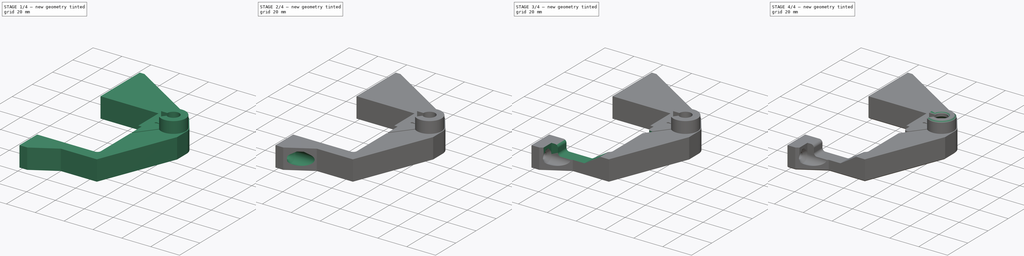
[diagram: build sequence overview — one tinted view per stage of 4, left to right]
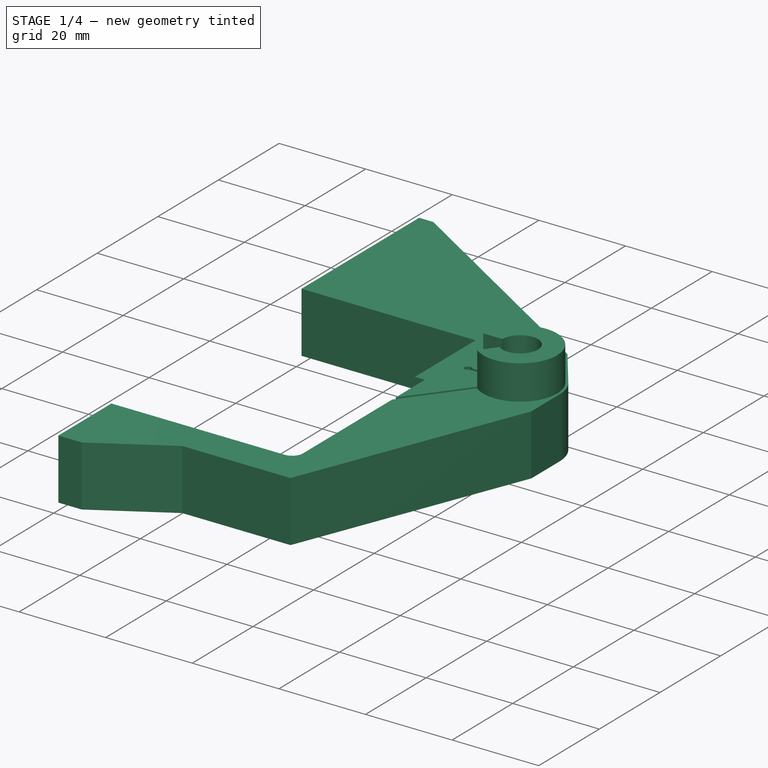
[diagram: stage 1 of 4 — iso view after this stage's code; geometry added in this stage tinted green]
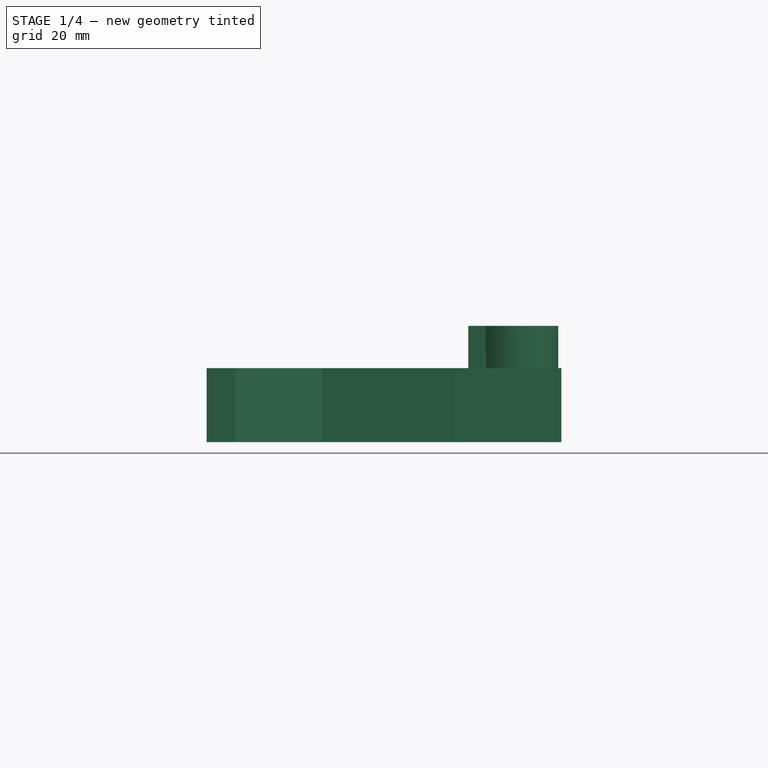
[diagram: stage 1 of 4 — front view after this stage's code; geometry added in this stage tinted green]
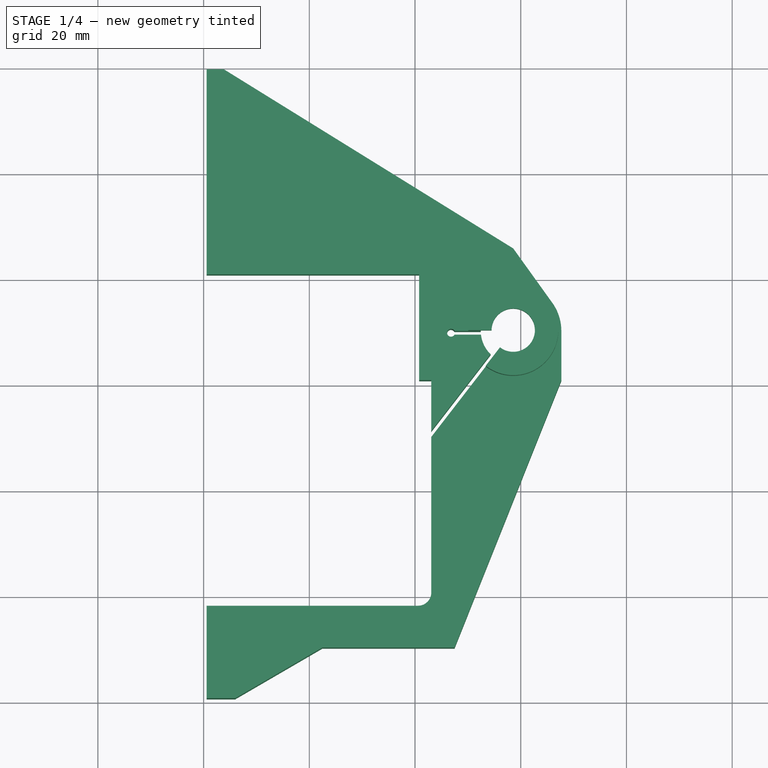
[diagram: stage 1 of 4 — top view after this stage's code; geometry added in this stage tinted green]
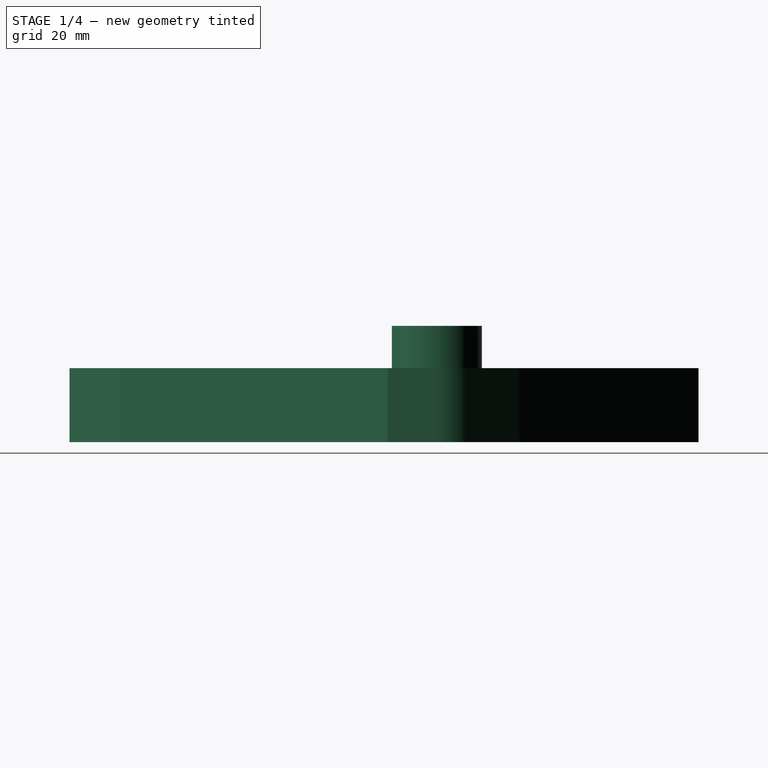
[diagram: stage 1 of 4 — right view after this stage's code; geometry added in this stage tinted green]
FCSTD DOCUMENT  (FreeCAD 0.17R13541 (Git))
Label: 04_437_z-lower-mount
License: All rights reserved
LicenseURL: http://en.wikipedia.org/wiki/All_rights_reserved
objects: Sketcher::SketchObject×17, PartDesign::Pocket×4, PartDesign::SubtractiveLoft×3, PartDesign::Chamfer×3, PartDesign::Pad×1, PartDesign::Fillet×1, PartDesign::Body×1
note: 38 computed .brp shape members not serialized (recipe doc carries the construction recipe); baked Part::Feature solids carry a one-line shape summary decoded from their .brp

FEATURE [Sketcher::SketchObject] Sketch
  AttachmentOffset = pos=(0,0,0.14) rot=(0,0,1;0rad)
  MapMode = 5
  Placement = pos=(0,0,0.14) rot=(0,0,1;0rad)
  Support = -> [XY_Plane]
  sketch-geometry (35):
    g0: LineSegment StartX=0.58 StartY=0.68 StartZ=0 EndX=5.98 EndY=0.68 EndZ=0
    g1: LineSegment StartX=5.98 StartY=0.68 StartZ=0 EndX=22.48 EndY=10.28 EndZ=0
    g2: LineSegment StartX=22.48 StartY=10.28 StartZ=0 EndX=47.48 EndY=10.28 EndZ=0
    g3: LineSegment StartX=47.48 StartY=10.28 StartZ=0 EndX=67.68 EndY=60.88 EndZ=0
    g4: LineSegment StartX=67.68 StartY=60.88 StartZ=0 EndX=67.68 EndY=70.18 EndZ=0
    g5: ArcOfCircle CenterX=58.58 CenterY=70.18 CenterZ=0 NormalX=0 NormalY=0 NormalZ=1 AngleXU=0 Radius=9.1 StartAngle=0 EndAngle=0.622827
    g6: LineSegment StartX=65.9713 StartY=75.4883 StartZ=0 EndX=58.58 EndY=85.78 EndZ=0
    g7: LineSegment StartX=58.58 StartY=85.78 StartZ=0 EndX=3.83 EndY=119.68 EndZ=0
    g8: LineSegment StartX=3.83 StartY=119.68 StartZ=0 EndX=0.58 EndY=119.68 EndZ=0
    g9: LineSegment StartX=0.58 StartY=119.68 StartZ=0 EndX=0.58 EndY=80.88 EndZ=0
    g10: LineSegment StartX=0.58 StartY=80.88 StartZ=0 EndX=40.78 EndY=80.88 EndZ=0
    g11: LineSegment StartX=40.78 StartY=80.88 StartZ=0 EndX=40.78 EndY=60.88 EndZ=0
    g12: LineSegment StartX=40.78 StartY=60.88 StartZ=0 EndX=43.08 EndY=60.88 EndZ=0
    g13: LineSegment StartX=43.08 StartY=60.88 StartZ=0 EndX=43.08 EndY=51.263 EndZ=0
    g14: ArcOfCircle CenterX=58.58 CenterY=70.18 CenterZ=0 NormalX=0 NormalY=0 NormalZ=1 AngleXU=0 Radius=6.15 StartAngle=3.25566 EndAngle=3.94051
    g15: LineSegment StartX=43.08 StartY=51.263 StartZ=0 EndX=54.2905 EndY=65.7729 EndZ=0
    g16: LineSegment StartX=52.47 StartY=69.48 StartZ=0 EndX=47.47 EndY=69.48 EndZ=0
    g17: ArcOfCircle CenterX=46.8066 CenterY=69.83 CenterZ=0 NormalX=0 NormalY=0 NormalZ=1 AngleXU=0 Radius=0.75 StartAngle=0.485518 EndAngle=5.79767
    g18: LineSegment StartX=47.47 StartY=70.18 StartZ=0 EndX=54.48 EndY=70.18 EndZ=0
    g19: ArcOfCircle CenterX=58.58 CenterY=70.18 CenterZ=0 NormalX=0 NormalY=0 NormalZ=1 AngleXU=0 Radius=4.1 StartAngle=4.05457 EndAngle=9.42478
    g20: LineSegment StartX=56.0733 StartY=66.9355 StartZ=0 EndX=43.08 EndY=50.1181 EndZ=0
    g21: LineSegment StartX=43.08 StartY=50.1181 StartZ=0 EndX=43.08 EndY=20.68 EndZ=0
    g22: LineSegment StartX=40.58 StartY=18.18 StartZ=0 EndX=0.58 EndY=18.18 EndZ=0
    g23: LineSegment StartX=0.58 StartY=18.18 StartZ=0 EndX=0.58 EndY=0.68 EndZ=0
    g24: LineSegment [constr] StartX=47.47 StartY=70.18 StartZ=0 EndX=47.47 EndY=69.48 EndZ=0
    g25: ArcOfCircle CenterX=40.58 CenterY=20.68 CenterZ=0 NormalX=0 NormalY=0 NormalZ=1 AngleXU=0 Radius=2.5 StartAngle=4.71239 EndAngle=6.28319
    g26: LineSegment [constr] StartX=40.58 StartY=80.68 StartZ=0 EndX=0.58 EndY=80.68 EndZ=0
    g27: LineSegment [constr] StartX=0.58 StartY=80.68 StartZ=0 EndX=0.58 EndY=60.68 EndZ=0
    g28: LineSegment [constr] StartX=0.58 StartY=60.68 StartZ=0 EndX=40.58 EndY=60.68 EndZ=0
    g29: LineSegment [constr] StartX=40.58 StartY=60.68 StartZ=0 EndX=40.58 EndY=80.68 EndZ=0
    g30: GeomPoint X=40.58 Y=70.68 Z=0
    g31: LineSegment [constr] StartX=0.58 StartY=60.68 StartZ=0 EndX=42.88 EndY=60.68 EndZ=0
    g32: LineSegment [constr] StartX=42.88 StartY=60.68 StartZ=0 EndX=42.88 EndY=18.38 EndZ=0
    g33: LineSegment [constr] StartX=42.88 StartY=18.38 StartZ=0 EndX=0.58 EndY=18.38 EndZ=0
    g34: LineSegment [constr] StartX=0.58 StartY=18.38 StartZ=0 EndX=0.58 EndY=60.68 EndZ=0
  constraints (101):
    c: Coincident(g0,g1)
    c: Coincident(g1,g2)
    c: Coincident(g2,g3)
    c: Coincident(g3,g4)
    c: Horizontal(g0)
    c: Horizontal(g2)
    c: Vertical(g4)
    c: Tangent(g4,g5) = -1.5708
    c: Coincident(g6,g7)
    c: Coincident(g7,g8)
    c: Tangent(g5,g6) = -1.5708
    c: Horizontal(g8)
    c: Coincident(g9,g10)
    c: Coincident(g10,g11)
    c: Coincident(g11,g12)
    c: Coincident(g12,g13)
    c: Coincident(g14,g5)
    c: Coincident(g13,g15)
    c: Vertical(g9)
    c: Vertical(g11)
    c: Vertical(g13)
    c: Horizontal(g10)
    c: Horizontal(g12)
    c: Horizontal(g16)
    c: Coincident(g15,g14)
    c: Coincident(g14,g16)
    c: Coincident(g16,g17)
    c: Coincident(g18,g17)
    c: Horizontal(g18)
    c: Radius(g17) = 0.75
    c: Coincident(g5,g19)
    c: Coincident(g18,g19)
    c: Coincident(g20,g21)
    c: Coincident(g22,g23)
    c: Coincident(g0,g23)
    c: Coincident(g20,g19)
    c: Parallel(g20,g15)
    c: Vertical(g23)
    c: Vertical(g21)
    c: Horizontal(g22)
    c: PointOnObject(g9,g23)
    c: DistanceX(g-2,g0) = 0.58
    c: Coincident(g9,g8)
    c: Radius(g19) = 4.1
    c: Radius(g14) = 6.15
    c: DistanceY(g-1,g0) = 0.68
    c: Distance(g18,g16) = 0.7
    c: Distance(g14,g20) = 0.7
    c: Coincident(g24,g17)
    c: Coincident(g16,g24)
    c: Vertical(g24)
    c: PointOnObject(g13,g21)
    c: Tangent(g25,g22) = 1.5708
    c: Tangent(g25,g21) = 1.5708
    c: Radius(g25) = 2.5
    c: Distance(g3,g23) = 67.1
    c: Distance(g8,g0) = 119
    c: PointOnObject(g3,g12)
    c: Distance(g5,g0) = 69.5
    c: PointOnObject(g5,g18)
    c: PointOnObject(g5,g20)
    c: Distance(g16) = 5
    c: Distance(g0) = 5.4
    c: DistanceX(g0,g1) = 16.5
    c: Distance(g22,g2) = 7.9
    c: Distance(g2) = 25
    c: Distance(g8) = 3.25
    c: Distance(g6,g10) = 4.9
    c: Distance(g6,g9) = 58
    c: Coincident(g26,g27)
    c: Coincident(g27,g28)
    c: Coincident(g28,g29)
    c: Coincident(g29,g26)
    c: Horizontal(g26)
    c: Horizontal(g28)
    c: Vertical(g27)
    c: Vertical(g29)
    c: Distance(g26) = 40
    c: Distance(g29) = 20
    c: PointOnObject(g30,g29)
    c: Symmetric(g26,g28,g30)
    c: DistanceY(g30,g5) = -0.5
    c: Coincident(g31,g32)
    c: Coincident(g32,g33)
    c: Coincident(g33,g34)
    c: Coincident(g34,g31)
    c: Horizontal(g31)
    c: Horizontal(g33)
    c: Vertical(g32)
    c: Vertical(g34)
    c: Equal(g31,g34)
    c: Distance(g31) = 42.3
    c: Coincident(g31,g27)
    c: Distance(g5,g29) = 18
    c: PointOnObject(g33,g23)
    c: Distance(g21,g32) = 0.2
    c: Distance(g10,g29) = 0.2
    c: Distance(g9,g26) = 0.2
    c: Distance(g11,g31) = 0.2
    c: Distance(g22,g33) = 0.2
    c: Angle(g21,g20) = 2.48378
FEATURE [PartDesign::Pad] Pad  label="MainExtrusion"
  Length = 22
  Length2 = 100
  Profile = -> Sketch
  Type = 0
FEATURE [Sketcher::SketchObject] Sketch001
  AttachmentOffset = pos=(0,0,22.14) rot=(0,0,1;0rad)
  MapMode = 5
  Placement = pos=(0,0,22.14) rot=(0,0,1;0rad)
  Support = -> [XY_Plane]
  sketch-geometry (17):
    g0: LineSegment [constr] StartX=40.58 StartY=80.68 StartZ=0 EndX=40.58 EndY=60.68 EndZ=0
    g1: ArcOfCircle CenterX=58.58 CenterY=70.18 CenterZ=0 NormalX=0 NormalY=0 NormalZ=1 AngleXU=0 Radius=8.52 StartAngle=4.05161 EndAngle=9.42478
    g2: LineSegment StartX=53.351 StartY=63.4534 StartZ=0 EndX=58.58 EndY=70.18 EndZ=0
    g3: LineSegment StartX=50.06 StartY=70.18 StartZ=0 EndX=58.58 EndY=70.18 EndZ=0
    g4: LineSegment StartX=0 StartY=120.68 StartZ=0 EndX=70 EndY=120.68 EndZ=0
    g5: LineSegment StartX=70 StartY=120.68 StartZ=0 EndX=70 EndY=0.68 EndZ=0
    g6: LineSegment StartX=70 StartY=0.68 StartZ=0 EndX=0 EndY=0.68 EndZ=0
    g7: LineSegment StartX=0 StartY=0.68 StartZ=0 EndX=0 EndY=120.68 EndZ=0
    g8: LineSegment [constr] StartX=0.58 StartY=80.68 StartZ=0 EndX=40.58 EndY=80.68 EndZ=0
    g9: LineSegment [constr] StartX=40.58 StartY=60.68 StartZ=0 EndX=0.58 EndY=60.68 EndZ=0
    g10: LineSegment [constr] StartX=0.58 StartY=60.68 StartZ=0 EndX=0.58 EndY=80.68 EndZ=0
    g11: LineSegment [constr] StartX=0.58 StartY=60.68 StartZ=0 EndX=42.88 EndY=60.68 EndZ=0
    g12: LineSegment [constr] StartX=42.88 StartY=60.68 StartZ=0 EndX=42.88 EndY=18.38 EndZ=0
    g13: LineSegment [constr] StartX=42.88 StartY=18.38 StartZ=0 EndX=0.58 EndY=18.38 EndZ=0
    g14: LineSegment [constr] StartX=0.58 StartY=18.38 StartZ=0 EndX=0.58 EndY=60.68 EndZ=0
    g15: GeomPoint X=40.58 Y=70.68 Z=0
    g16: LineSegment [constr] StartX=67.1 StartY=120.68 StartZ=0 EndX=67.1 EndY=0.68 EndZ=0
  constraints (50):
    c: Vertical(g0)
    c: Coincident(g3,g1)
    c: Coincident(g2,g1)
    c: Coincident(g4,g5)
    c: Coincident(g5,g6)
    c: Coincident(g6,g7)
    c: Coincident(g7,g4)
    c: Horizontal(g4)
    c: Horizontal(g6)
    c: Vertical(g5)
    c: Vertical(g7)
    c: PointOnObject(g4,g-2)
    c: Distance(g7) = 120
    c: Distance(g4) = 70
    c: Coincident(g9,g10)
    c: Coincident(g10,g8)
    c: Horizontal(g8)
    c: Horizontal(g9)
    c: Vertical(g10)
    c: Distance(g8) = 40
    c: Coincident(g11,g12)
    c: Coincident(g12,g13)
    c: Coincident(g13,g14)
    c: Coincident(g14,g11)
    c: Horizontal(g11)
    c: Horizontal(g13)
    c: Vertical(g12)
    c: Vertical(g14)
    c: Equal(g11,g14)
    c: Coincident(g11,g9)
    c: Distance(g13) = 42.3
    c: Symmetric(g8,g9,g15)
    c: Angle(g12,g2) = 2.48081
    c: Horizontal(g3)
    c: Coincident(g0,g8)
    c: Coincident(g9,g0)
    c: Equal(g11,g12)
    c: Distance(g1,g0) = 18
    c: DistanceY(g2,g15) = 0.5
    c: Distance(g10) = 20
    c: Coincident(g3,g2)
    c: Coincident(g3,g1)
    c: DistanceY(g-1,g6) = 0.68
    c: Distance(g8,g7) = 0.58
    c: PointOnObject(g16,g6)
    c: Vertical(g16)
    c: PointOnObject(g16,g4)
    c: Tangent(g16,g1)
    c: Distance(g4,g16) = 67.1
    c: Distance(g1,g6) = 69.5
FEATURE [PartDesign::Pocket] Pocket  label="ZRodBoss"
  BaseFeature = -> Pad
  Length = 8
  Length2 = 100
  Profile = -> Sketch001
  Type = 0
FEATURE [Sketcher::SketchObject] Sketch002
  AttachmentOffset = pos=(0,0,0.14) rot=(0,0,1;0rad)
  MapMode = 5
  Placement = pos=(0,0,0.14) rot=(0,0,1;0rad)
  Support = -> [XY_Plane]
  sketch-geometry (7):
    g0: Circle CenterX=58.58 CenterY=70.18 CenterZ=0 NormalX=0 NormalY=0 NormalZ=1 AngleXU=0 Radius=6.15
    g1: LineSegment [constr] StartX=0.58 StartY=80.68 StartZ=0 EndX=40.58 EndY=80.68 EndZ=0
    g2: LineSegment [constr] StartX=40.58 StartY=80.68 StartZ=0 EndX=40.58 EndY=60.68 EndZ=0
    g3: LineSegment [constr] StartX=40.58 StartY=60.68 StartZ=0 EndX=0.58 EndY=60.68 EndZ=0
    g4: LineSegment [constr] StartX=0.58 StartY=60.68 StartZ=0 EndX=0.58 EndY=80.68 EndZ=0
    g5: GeomPoint X=40.58 Y=70.68 Z=0
    g6: LineSegment [constr] StartX=0 StartY=0.68 StartZ=0 EndX=70 EndY=0.68 EndZ=0
  constraints (20):
    c: Radius(g0) = 6.15
    c: Coincident(g1,g2)
    c: Coincident(g2,g3)
    c: Coincident(g3,g4)
    c: Coincident(g4,g1)
    c: Horizontal(g1)
    c: Horizontal(g3)
    c: Vertical(g2)
    c: Vertical(g4)
    c: Distance(g1) = 40
    c: Distance(g4) = 20
    c: Symmetric(g1,g2,g5)
    c: Distance(g0,g2) = 18
    c: DistanceY(g0,g5) = 0.5
    c: DistanceX(g-2,g1) = 0.58
    c: PointOnObject(g6,g-2)
    c: Horizontal(g6)
    c: DistanceY(g-1,g6) = 0.68
    c: Distance(g0,g6) = 69.5
    c: Distance(g6) = 70
FEATURE [PartDesign::Pocket] Pocket001  label="RodPocket"
  BaseFeature = -> Pocket
  Length = 17.1
  Length2 = 100
  Profile = -> Sketch002
  Reversed = true
  Type = 0
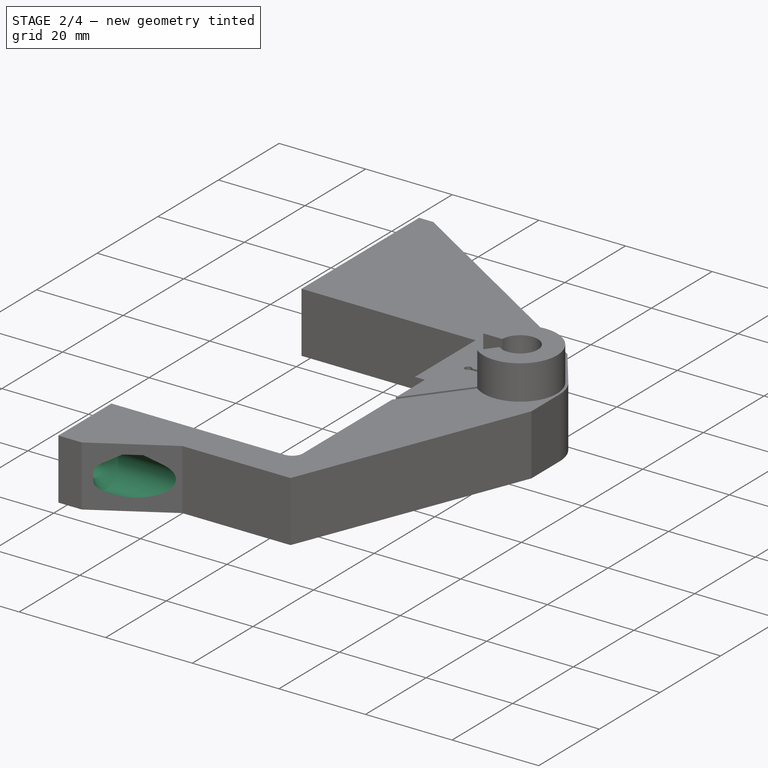
[diagram: stage 2 of 4 — iso view after this stage's code; geometry added in this stage tinted green]
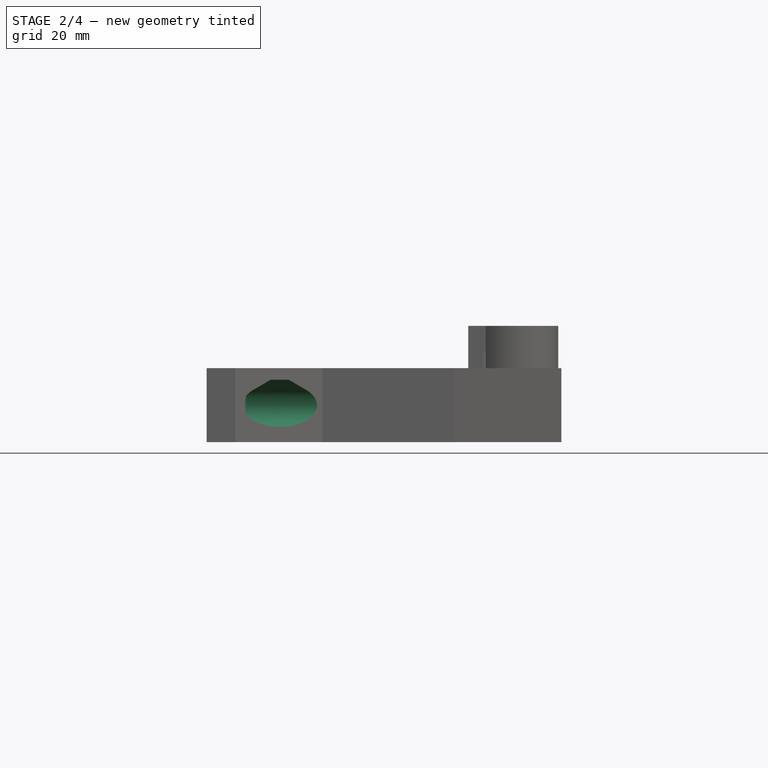
[diagram: stage 2 of 4 — front view after this stage's code; geometry added in this stage tinted green]
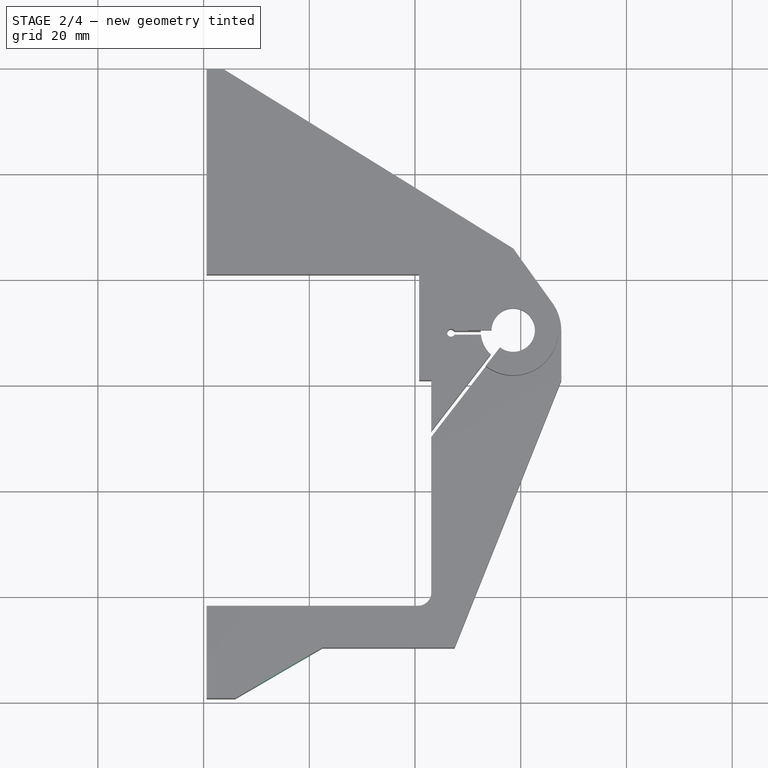
[diagram: stage 2 of 4 — top view after this stage's code; geometry added in this stage tinted green]
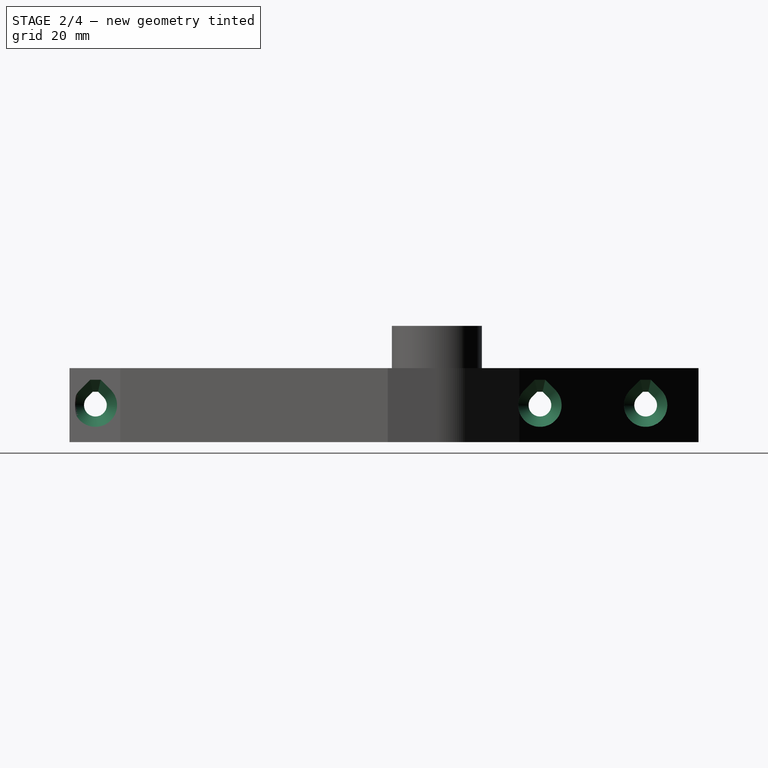
[diagram: stage 2 of 4 — right view after this stage's code; geometry added in this stage tinted green]
FEATURE [Sketcher::SketchObject] Sketch003
  AttachmentOffset = pos=(0,0,0.58) rot=(0,0,1;0rad)
  MapMode = 5
  Placement = pos=(0.58,0,0) rot=(0.57735,0.57735,0.57735;2.0944rad)
  Support = -> [YZ_Plane]
  sketch-geometry (14):
    g0: LineSegment [constr] StartX=0.68 StartY=25.14 StartZ=0 EndX=0.68 EndY=0.14 EndZ=0
    g1: LineSegment [constr] StartX=0.68 StartY=0.14 StartZ=0 EndX=125.68 EndY=0.14 EndZ=0
    g2: ArcOfCircle CenterX=5.58 CenterY=7.14 CenterZ=0 NormalX=0 NormalY=0 NormalZ=1 AngleXU=0 Radius=2.15 StartAngle=2.35619 EndAngle=7.06858
    g3: LineSegment StartX=4.05972 StartY=8.66028 StartZ=0 EndX=5.08 EndY=9.68056 EndZ=0
    g4: LineSegment StartX=5.08 StartY=9.68056 StartZ=0 EndX=6.08 EndY=9.68056 EndZ=0
    g5: LineSegment StartX=6.08 StartY=9.68056 StartZ=0 EndX=7.10028 EndY=8.66028 EndZ=0
    g6: ArcOfCircle [constr] CenterX=109.68 CenterY=7.14 CenterZ=0 NormalX=0 NormalY=0 NormalZ=1 AngleXU=0 Radius=2.15 StartAngle=2.35619 EndAngle=7.06858
    g7: ArcOfCircle [constr] CenterX=89.68 CenterY=7.14 CenterZ=0 NormalX=0 NormalY=0 NormalZ=1 AngleXU=0 Radius=2.15 StartAngle=2.3562 EndAngle=7.06859
    g8: LineSegment [constr] StartX=89.18 StartY=9.68056 StartZ=0 EndX=90.18 EndY=9.68056 EndZ=0
    g9: LineSegment [constr] StartX=88.1597 StartY=8.66027 StartZ=0 EndX=89.18 EndY=9.68056 EndZ=0
    g10: LineSegment [constr] StartX=91.2003 StartY=8.66029 StartZ=0 EndX=90.18 EndY=9.68056 EndZ=0
    g11: LineSegment [constr] StartX=108.16 StartY=8.66028 StartZ=0 EndX=109.18 EndY=9.68056 EndZ=0
    g12: LineSegment [constr] StartX=109.18 StartY=9.68056 StartZ=0 EndX=110.18 EndY=9.68056 EndZ=0
    g13: LineSegment [constr] StartX=110.18 StartY=9.68056 StartZ=0 EndX=111.2 EndY=8.66028 EndZ=0
  constraints (44):
    c: Coincident(g0,g1)
    c: Horizontal(g1)
    c: Vertical(g0)
    c: DistanceY(g-1,g0) = 0.14
    c: DistanceX(g-2,g0) = 0.68
    c: Distance(g0) = 25
    c: Distance(g1) = 125
    c: Coincident(g3,g4)
    c: Coincident(g4,g5)
    c: Tangent(g2,g3) = 1.5708
    c: Tangent(g2,g5) = 1.5708
    c: Horizontal(g4)
    c: Distance(g4) = 1
    c: Radius(g2) = 2.15
    c: Angle(g3,g-2) = 0.785398
    c: Distance(g2,g0) = 4.9
    c: Distance(g2,g1) = 7
    c: Horizontal(g8)
    c: Equal(g6,g7)
    c: Equal(g7,g2)
    c: Coincident(g7,g9)
    c: Coincident(g9,g8)
    c: Coincident(g8,g10)
    c: Coincident(g10,g7)
    c: Tangent(g7,g9)
    c: Tangent(g7,g10)
    c: Distance(g6,g1) = 7
    c: Distance(g7,g1) = 7
    c: Coincident(g11,g12)
    c: Coincident(g12,g13)
    c: Coincident(g6,g11)
    c: Coincident(g6,g13)
    c: Tangent(g6,g11)
    c: Tangent(g6,g13)
    c: Horizontal(g12)
    c: Equal(g8,g12)
    c: Distance(g12) = 1
    c: Equal(g3,g5)
    c: Equal(g5,g9)
    c: Equal(g9,g10)
    c: Equal(g10,g11)
    c: Equal(g11,g13)
    c: Distance(g7,g0) = 89
    c: Distance(g6,g0) = 109
FEATURE [Sketcher::SketchObject] Sketch004
  AttachmentOffset = pos=(0,0,6.08) rot=(0,0,1;0rad)
  MapMode = 5
  Placement = pos=(6.08,-1e-12,1e-12) rot=(0.57735,0.57735,0.57735;2.0944rad)
  Support = -> [YZ_Plane]
  sketch-geometry (14):
    g0: LineSegment [constr] StartX=0.68 StartY=25.14 StartZ=0 EndX=0.68 EndY=0.14 EndZ=0
    g1: LineSegment [constr] StartX=0.68 StartY=0.14 StartZ=0 EndX=125.68 EndY=0.14 EndZ=0
    g2: ArcOfCircle CenterX=5.58 CenterY=7.14 CenterZ=0 NormalX=0 NormalY=0 NormalZ=1 AngleXU=0 Radius=2.15 StartAngle=2.35619 EndAngle=7.06858
    g3: LineSegment StartX=4.05972 StartY=8.66028 StartZ=0 EndX=5.08 EndY=9.68056 EndZ=0
    g4: LineSegment StartX=5.08 StartY=9.68056 StartZ=0 EndX=6.08 EndY=9.68056 EndZ=0
    g5: LineSegment StartX=6.08 StartY=9.68056 StartZ=0 EndX=7.10028 EndY=8.66028 EndZ=0
    g6: ArcOfCircle [constr] CenterX=109.68 CenterY=7.14 CenterZ=0 NormalX=0 NormalY=0 NormalZ=1 AngleXU=0 Radius=2.15 StartAngle=2.35619 EndAngle=7.06858
    g7: ArcOfCircle [constr] CenterX=89.68 CenterY=7.14 CenterZ=0 NormalX=0 NormalY=0 NormalZ=1 AngleXU=0 Radius=2.15 StartAngle=2.3562 EndAngle=7.06859
    g8: LineSegment [constr] StartX=89.18 StartY=9.68056 StartZ=0 EndX=90.18 EndY=9.68056 EndZ=0
    g9: LineSegment [constr] StartX=88.1597 StartY=8.66027 StartZ=0 EndX=89.18 EndY=9.68056 EndZ=0
    g10: LineSegment [constr] StartX=91.2003 StartY=8.66029 StartZ=0 EndX=90.18 EndY=9.68056 EndZ=0
    g11: LineSegment [constr] StartX=108.16 StartY=8.66028 StartZ=0 EndX=109.18 EndY=9.68056 EndZ=0
    g12: LineSegment [constr] StartX=109.18 StartY=9.68056 StartZ=0 EndX=110.18 EndY=9.68056 EndZ=0
    g13: LineSegment [constr] StartX=110.18 StartY=9.68056 StartZ=0 EndX=111.2 EndY=8.66028 EndZ=0
  constraints (44):
    c: Coincident(g0,g1)
    c: Horizontal(g1)
    c: Vertical(g0)
    c: DistanceY(g-1,g0) = 0.14
    c: DistanceX(g-2,g0) = 0.68
    c: Distance(g0) = 25
    c: Distance(g1) = 125
    c: Coincident(g3,g4)
    c: Coincident(g4,g5)
    c: Tangent(g2,g3) = 1.5708
    c: Tangent(g2,g5) = 1.5708
    c: Horizontal(g4)
    c: Distance(g4) = 1
    c: Radius(g2) = 2.15
    c: Angle(g3,g-2) = 0.785398
    c: Distance(g2,g0) = 4.9
    c: Distance(g2,g1) = 7
    c: Horizontal(g8)
    c: Equal(g6,g7)
    c: Equal(g7,g2)
    c: Coincident(g7,g9)
    c: Coincident(g9,g8)
    c: Coincident(g8,g10)
    c: Coincident(g10,g7)
    c: Tangent(g7,g9)
    c: Tangent(g7,g10)
    c: Distance(g6,g1) = 7
    c: Distance(g7,g1) = 7
    c: Coincident(g11,g12)
    c: Coincident(g12,g13)
    c: Coincident(g6,g11)
    c: Coincident(g6,g13)
    c: Tangent(g6,g11)
    c: Tangent(g6,g13)
    c: Horizontal(g12)
    c: Equal(g8,g12)
    c: Distance(g12) = 1
    c: Equal(g3,g5)
    c: Equal(g5,g9)
    c: Equal(g9,g10)
    c: Equal(g10,g11)
    c: Equal(g11,g13)
    c: Distance(g7,g0) = 89
    c: Distance(g6,g0) = 109
FEATURE [Sketcher::SketchObject] Sketch005
  AttachmentOffset = pos=(0,0,8.08) rot=(0,0,1;0rad)
  MapMode = 5
  Placement = pos=(8.08,-1e-12,1e-12) rot=(0.57735,0.57735,0.57735;2.0944rad)
  Support = -> [YZ_Plane]
  sketch-geometry (14):
    g0: LineSegment [constr] StartX=0.68 StartY=25.14 StartZ=0 EndX=0.68 EndY=0.14 EndZ=0
    g1: LineSegment [constr] StartX=0.68 StartY=0.14 StartZ=0 EndX=125.68 EndY=0.14 EndZ=0
    g2: ArcOfCircle CenterX=5.58 CenterY=7.14 CenterZ=0 NormalX=0 NormalY=0 NormalZ=1 AngleXU=0 Radius=4.1 StartAngle=2.35619 EndAngle=7.06858
    g3: LineSegment StartX=2.68086 StartY=10.0391 StartZ=0 EndX=4.58 EndY=11.9383 EndZ=0
    g4: LineSegment StartX=4.58 StartY=11.9383 StartZ=0 EndX=6.58 EndY=11.9383 EndZ=0
    g5: LineSegment StartX=6.58 StartY=11.9383 StartZ=0 EndX=8.47914 EndY=10.0391 EndZ=0
    g6: ArcOfCircle [constr] CenterX=109.68 CenterY=7.14 CenterZ=0 NormalX=0 NormalY=0 NormalZ=1 AngleXU=0 Radius=4.1 StartAngle=2.25292 EndAngle=7.17186
    g7: ArcOfCircle [constr] CenterX=89.68 CenterY=7.14 CenterZ=0 NormalX=0 NormalY=0 NormalZ=1 AngleXU=0 Radius=4.1 StartAngle=2.25291 EndAngle=7.17185
    g8: LineSegment [constr] StartX=89.18 StartY=12.0158 StartZ=0 EndX=90.18 EndY=12.0158 EndZ=0
    g9: LineSegment [constr] StartX=87.0952 StartY=10.3226 StartZ=0 EndX=89.18 EndY=12.0158 EndZ=0
    g10: LineSegment [constr] StartX=92.2648 StartY=10.3226 StartZ=0 EndX=90.18 EndY=12.0158 EndZ=0
    g11: LineSegment [constr] StartX=107.095 StartY=10.3226 StartZ=0 EndX=109.18 EndY=12.0158 EndZ=0
    g12: LineSegment [constr] StartX=109.18 StartY=12.0158 StartZ=0 EndX=110.18 EndY=12.0158 EndZ=0
    g13: LineSegment [constr] StartX=110.18 StartY=12.0158 StartZ=0 EndX=112.265 EndY=10.3226 EndZ=0
  constraints (44):
    c: Coincident(g0,g1)
    c: Horizontal(g1)
    c: Vertical(g0)
    c: DistanceY(g-1,g0) = 0.14
    c: DistanceX(g-2,g0) = 0.68
    c: Distance(g0) = 25
    c: Distance(g1) = 125
    c: Coincident(g3,g4)
    c: Coincident(g4,g5)
    c: Tangent(g2,g3) = 1.5708
    c: Tangent(g2,g5) = 1.5708
    c: Horizontal(g4)
    c: Distance(g4) = 2
    c: Radius(g2) = 4.1
    c: Angle(g3,g-2) = 0.785398
    c: Distance(g2,g0) = 4.9
    c: Distance(g2,g1) = 7
    c: Horizontal(g8)
    c: Equal(g6,g7)
    c: Equal(g7,g2)
    c: Coincident(g7,g9)
    c: Coincident(g9,g8)
    c: Coincident(g8,g10)
    c: Coincident(g10,g7)
    c: Tangent(g7,g9)
    c: Tangent(g7,g10)
    c: Distance(g6,g1) = 7
    c: Distance(g7,g1) = 7
    c: Coincident(g11,g12)
    c: Coincident(g12,g13)
    c: Coincident(g6,g11)
    c: Coincident(g6,g13)
    c: Tangent(g6,g11)
    c: Tangent(g6,g13)
    c: Horizontal(g12)
    c: Equal(g8,g12)
    c: Distance(g12) = 1
    c: Equal(g3,g5)
    c: Equal(g5,g9)
    c: Equal(g9,g10)
    c: Equal(g10,g11)
    c: Equal(g11,g13)
    c: Distance(g7,g0) = 89
    c: Distance(g6,g0) = 109
FEATURE [Sketcher::SketchObject] Sketch006
  AttachmentOffset = pos=(0,0,70) rot=(0,0,1;0rad)
  MapMode = 5
  Placement = pos=(70,-8e-12,8e-12) rot=(0.57735,0.57735,0.57735;2.0944rad)
  Support = -> [YZ_Plane]
  sketch-geometry (14):
    g0: LineSegment [constr] StartX=0.68 StartY=25.14 StartZ=0 EndX=0.68 EndY=0.14 EndZ=0
    g1: LineSegment [constr] StartX=0.68 StartY=0.14 StartZ=0 EndX=125.68 EndY=0.14 EndZ=0
    g2: ArcOfCircle CenterX=5.58 CenterY=7.14 CenterZ=0 NormalX=0 NormalY=0 NormalZ=1 AngleXU=0 Radius=4.1 StartAngle=2.35619 EndAngle=7.06858
    g3: LineSegment StartX=2.68086 StartY=10.0391 StartZ=0 EndX=4.58 EndY=11.9383 EndZ=0
    g4: LineSegment StartX=4.58 StartY=11.9383 StartZ=0 EndX=6.58 EndY=11.9383 EndZ=0
    g5: LineSegment StartX=6.58 StartY=11.9383 StartZ=0 EndX=8.47914 EndY=10.0391 EndZ=0
    g6: ArcOfCircle [constr] CenterX=109.68 CenterY=7.14 CenterZ=0 NormalX=0 NormalY=0 NormalZ=1 AngleXU=0 Radius=4.1 StartAngle=2.25292 EndAngle=7.17186
    g7: ArcOfCircle [constr] CenterX=89.68 CenterY=7.14 CenterZ=0 NormalX=0 NormalY=0 NormalZ=1 AngleXU=0 Radius=4.1 StartAngle=2.25291 EndAngle=7.17185
    g8: LineSegment [constr] StartX=89.18 StartY=12.0158 StartZ=0 EndX=90.18 EndY=12.0158 EndZ=0
    g9: LineSegment [constr] StartX=87.0952 StartY=10.3226 StartZ=0 EndX=89.18 EndY=12.0158 EndZ=0
    g10: LineSegment [constr] StartX=92.2648 StartY=10.3226 StartZ=0 EndX=90.18 EndY=12.0158 EndZ=0
    g11: LineSegment [constr] StartX=107.095 StartY=10.3226 StartZ=0 EndX=109.18 EndY=12.0158 EndZ=0
    g12: LineSegment [constr] StartX=109.18 StartY=12.0158 StartZ=0 EndX=110.18 EndY=12.0158 EndZ=0
    g13: LineSegment [constr] StartX=110.18 StartY=12.0158 StartZ=0 EndX=112.265 EndY=10.3226 EndZ=0
  constraints (44):
    c: Coincident(g0,g1)
    c: Horizontal(g1)
    c: Vertical(g0)
    c: DistanceY(g-1,g0) = 0.14
    c: DistanceX(g-2,g0) = 0.68
    c: Distance(g0) = 25
    c: Distance(g1) = 125
    c: Coincident(g3,g4)
    c: Coincident(g4,g5)
    c: Tangent(g2,g3) = 1.5708
    c: Tangent(g2,g5) = 1.5708
    c: Horizontal(g4)
    c: Distance(g4) = 2
    c: Radius(g2) = 4.1
    c: Angle(g3,g-2) = 0.785398
    c: Distance(g2,g0) = 4.9
    c: Distance(g2,g1) = 7
    c: Horizontal(g8)
    c: Equal(g6,g7)
    c: Equal(g7,g2)
    c: Coincident(g7,g9)
    c: Coincident(g9,g8)
    c: Coincident(g8,g10)
    c: Coincident(g10,g7)
    c: Tangent(g7,g9)
    c: Tangent(g7,g10)
    c: Distance(g6,g1) = 7
    c: Distance(g7,g1) = 7
    c: Coincident(g11,g12)
    c: Coincident(g12,g13)
    c: Coincident(g6,g11)
    c: Coincident(g6,g13)
    c: Tangent(g6,g11)
    c: Tangent(g6,g13)
    c: Horizontal(g12)
    c: Equal(g8,g12)
    c: Distance(g12) = 1
    c: Equal(g3,g5)
    c: Equal(g5,g9)
    c: Equal(g9,g10)
    c: Equal(g10,g11)
    c: Equal(g11,g13)
    c: Distance(g7,g0) = 89
    c: Distance(g6,g0) = 109
FEATURE [PartDesign::SubtractiveLoft] SubtractiveLoft  label="Bolt1"
  BaseFeature = -> Pocket001
  Closed = false
  Profile = -> Sketch003
  Ruled = true
  Sections = -> [Sketch004,Sketch005,Sketch006]
FEATURE [Sketcher::SketchObject] Sketch007
  AttachmentOffset = pos=(0,0,0.58) rot=(0,0,1;0rad)
  MapMode = 5
  Placement = pos=(0.58,0,0) rot=(0.57735,0.57735,0.57735;2.0944rad)
  Support = -> [YZ_Plane]
  sketch-geometry (14):
    g0: LineSegment [constr] StartX=0.68 StartY=25.14 StartZ=0 EndX=0.68 EndY=0.14 EndZ=0
    g1: LineSegment [constr] StartX=0.68 StartY=0.14 StartZ=0 EndX=125.68 EndY=0.14 EndZ=0
    g2: ArcOfCircle [constr] CenterX=5.58 CenterY=7.14 CenterZ=0 NormalX=0 NormalY=0 NormalZ=1 AngleXU=0 Radius=2.15 StartAngle=2.35619 EndAngle=7.06858
    g3: LineSegment [constr] StartX=4.05972 StartY=8.66028 StartZ=0 EndX=5.08 EndY=9.68056 EndZ=0
    g4: LineSegment [constr] StartX=5.08 StartY=9.68056 StartZ=0 EndX=6.08 EndY=9.68056 EndZ=0
    g5: LineSegment [constr] StartX=6.08 StartY=9.68056 StartZ=0 EndX=7.10028 EndY=8.66028 EndZ=0
    g6: ArcOfCircle [constr] CenterX=109.68 CenterY=7.14 CenterZ=0 NormalX=0 NormalY=0 NormalZ=1 AngleXU=0 Radius=2.15 StartAngle=2.35619 EndAngle=7.06858
    g7: ArcOfCircle CenterX=89.68 CenterY=7.14 CenterZ=0 NormalX=0 NormalY=0 NormalZ=1 AngleXU=0 Radius=2.15 StartAngle=2.3562 EndAngle=7.06859
    g8: LineSegment StartX=89.18 StartY=9.68056 StartZ=0 EndX=90.18 EndY=9.68056 EndZ=0
    g9: LineSegment StartX=88.1597 StartY=8.66027 StartZ=0 EndX=89.18 EndY=9.68056 EndZ=0
    g10: LineSegment StartX=91.2003 StartY=8.66029 StartZ=0 EndX=90.18 EndY=9.68056 EndZ=0
    g11: LineSegment [constr] StartX=108.16 StartY=8.66028 StartZ=0 EndX=109.18 EndY=9.68056 EndZ=0
    g12: LineSegment [constr] StartX=109.18 StartY=9.68056 StartZ=0 EndX=110.18 EndY=9.68056 EndZ=0
    g13: LineSegment [constr] StartX=110.18 StartY=9.68056 StartZ=0 EndX=111.2 EndY=8.66028 EndZ=0
  constraints (44):
    c: Coincident(g0,g1)
    c: Horizontal(g1)
    c: Vertical(g0)
    c: DistanceY(g-1,g0) = 0.14
    c: DistanceX(g-2,g0) = 0.68
    c: Distance(g0) = 25
    c: Distance(g1) = 125
    c: Coincident(g3,g4)
    c: Coincident(g4,g5)
    c: Tangent(g2,g3) = 1.5708
    c: Tangent(g2,g5) = 1.5708
    c: Horizontal(g4)
    c: Distance(g4) = 1
    c: Radius(g2) = 2.15
    c: Angle(g3,g-2) = 0.785398
    c: Distance(g2,g0) = 4.9
    c: Distance(g2,g1) = 7
    c: Horizontal(g8)
    c: Equal(g6,g7)
    c: Equal(g7,g2)
    c: Coincident(g7,g9)
    c: Coincident(g9,g8)
    c: Coincident(g8,g10)
    c: Coincident(g10,g7)
    c: Tangent(g7,g9)
    c: Tangent(g7,g10)
    c: Distance(g6,g1) = 7
    c: Distance(g7,g1) = 7
    c: Coincident(g11,g12)
    c: Coincident(g12,g13)
    c: Coincident(g6,g11)
    c: Coincident(g6,g13)
    c: Tangent(g6,g11)
    c: Tangent(g6,g13)
    c: Horizontal(g12)
    c: Equal(g8,g12)
    c: Distance(g12) = 1
    c: Equal(g3,g5)
    c: Equal(g5,g9)
    c: Equal(g9,g10)
    c: Equal(g10,g11)
    c: Equal(g11,g13)
    c: Distance(g7,g0) = 89
    c: Distance(g6,g0) = 109
FEATURE [Sketcher::SketchObject] Sketch008
  AttachmentOffset = pos=(0,0,70) rot=(0,0,1;0rad)
  MapMode = 5
  Placement = pos=(70,-8e-12,8e-12) rot=(0.57735,0.57735,0.57735;2.0944rad)
  Support = -> [YZ_Plane]
  sketch-geometry (14):
    g0: LineSegment [constr] StartX=0.68 StartY=25.14 StartZ=0 EndX=0.68 EndY=0.14 EndZ=0
    g1: LineSegment [constr] StartX=0.68 StartY=0.14 StartZ=0 EndX=125.68 EndY=0.14 EndZ=0
    g2: ArcOfCircle [constr] CenterX=5.58 CenterY=7.14 CenterZ=0 NormalX=0 NormalY=0 NormalZ=1 AngleXU=0 Radius=4.1 StartAngle=2.35619 EndAngle=7.06858
    g3: LineSegment [constr] StartX=2.68086 StartY=10.0391 StartZ=0 EndX=4.58 EndY=11.9383 EndZ=0
    g4: LineSegment [constr] StartX=4.58 StartY=11.9383 StartZ=0 EndX=6.58 EndY=11.9383 EndZ=0
    g5: LineSegment [constr] StartX=6.58 StartY=11.9383 StartZ=0 EndX=8.47914 EndY=10.0391 EndZ=0
    g6: ArcOfCircle [constr] CenterX=109.68 CenterY=7.14 CenterZ=0 NormalX=0 NormalY=0 NormalZ=1 AngleXU=0 Radius=4.1 StartAngle=2.35619 EndAngle=7.06858
    g7: ArcOfCircle CenterX=89.68 CenterY=7.14 CenterZ=0 NormalX=0 NormalY=0 NormalZ=1 AngleXU=0 Radius=4.1 StartAngle=2.35619 EndAngle=7.06858
    g8: LineSegment StartX=88.68 StartY=11.9383 StartZ=0 EndX=90.68 EndY=11.9383 EndZ=0
    g9: LineSegment StartX=86.7809 StartY=10.0391 StartZ=0 EndX=88.68 EndY=11.9383 EndZ=0
    g10: LineSegment StartX=92.5791 StartY=10.0391 StartZ=0 EndX=90.68 EndY=11.9383 EndZ=0
    g11: LineSegment [constr] StartX=106.781 StartY=10.0391 StartZ=0 EndX=108.68 EndY=11.9383 EndZ=0
    g12: LineSegment [constr] StartX=108.68 StartY=11.9383 StartZ=0 EndX=110.68 EndY=11.9383 EndZ=0
    g13: LineSegment [constr] StartX=110.68 StartY=11.9383 StartZ=0 EndX=112.579 EndY=10.0391 EndZ=0
  constraints (44):
    c: Coincident(g0,g1)
    c: Horizontal(g1)
    c: Vertical(g0)
    c: DistanceY(g-1,g0) = 0.14
    c: DistanceX(g-2,g0) = 0.68
    c: Distance(g0) = 25
    c: Distance(g1) = 125
    c: Coincident(g3,g4)
    c: Coincident(g4,g5)
    c: Tangent(g2,g3) = 1.5708
    c: Tangent(g2,g5) = 1.5708
    c: Horizontal(g4)
    c: Distance(g4) = 2
    c: Radius(g2) = 4.1
    c: Angle(g3,g-2) = 0.785398
    c: Distance(g2,g0) = 4.9
    c: Distance(g2,g1) = 7
    c: Horizontal(g8)
    c: Equal(g6,g7)
    c: Equal(g7,g2)
    c: Coincident(g7,g9)
    c: Coincident(g9,g8)
    c: Coincident(g8,g10)
    c: Coincident(g10,g7)
    c: Tangent(g7,g9)
    c: Tangent(g7,g10)
    c: Distance(g6,g1) = 7
    c: Distance(g7,g1) = 7
    c: Coincident(g11,g12)
    c: Coincident(g12,g13)
    c: Coincident(g6,g11)
    c: Coincident(g6,g13)
    c: Tangent(g6,g11)
    c: Tangent(g6,g13)
    c: Horizontal(g12)
    c: Equal(g8,g12)
    c: Distance(g12) = 2
    c: Equal(g3,g5)
    c: Equal(g5,g9)
    c: Equal(g9,g10)
    c: Equal(g10,g11)
    c: Equal(g11,g13)
    c: Distance(g7,g0) = 89
    c: Distance(g6,g0) = 109
FEATURE [Sketcher::SketchObject] Sketch009
  AttachmentOffset = pos=(0,0,8.08) rot=(0,0,1;0rad)
  MapMode = 5
  Placement = pos=(8.08,-1e-12,1e-12) rot=(0.57735,0.57735,0.57735;2.0944rad)
  Support = -> [YZ_Plane]
  sketch-geometry (14):
    g0: LineSegment [constr] StartX=0.68 StartY=25.14 StartZ=0 EndX=0.68 EndY=0.14 EndZ=0
    g1: LineSegment [constr] StartX=0.68 StartY=0.14 StartZ=0 EndX=125.68 EndY=0.14 EndZ=0
    g2: ArcOfCircle [constr] CenterX=5.58 CenterY=7.14 CenterZ=0 NormalX=0 NormalY=0 NormalZ=1 AngleXU=0 Radius=4.1 StartAngle=2.35619 EndAngle=7.06858
    g3: LineSegment [constr] StartX=2.68086 StartY=10.0391 StartZ=0 EndX=4.58 EndY=11.9383 EndZ=0
    g4: LineSegment [constr] StartX=4.58 StartY=11.9383 StartZ=0 EndX=6.58 EndY=11.9383 EndZ=0
    g5: LineSegment [constr] StartX=6.58 StartY=11.9383 StartZ=0 EndX=8.47914 EndY=10.0391 EndZ=0
    g6: ArcOfCircle [constr] CenterX=109.68 CenterY=7.14 CenterZ=0 NormalX=0 NormalY=0 NormalZ=1 AngleXU=0 Radius=4.1 StartAngle=2.35619 EndAngle=7.06858
    g7: ArcOfCircle CenterX=89.68 CenterY=7.14 CenterZ=0 NormalX=0 NormalY=0 NormalZ=1 AngleXU=0 Radius=4.1 StartAngle=2.35619 EndAngle=7.06858
    g8: LineSegment StartX=88.68 StartY=11.9383 StartZ=0 EndX=90.68 EndY=11.9383 EndZ=0
    g9: LineSegment StartX=86.7809 StartY=10.0391 StartZ=0 EndX=88.68 EndY=11.9383 EndZ=0
    g10: LineSegment StartX=92.5791 StartY=10.0391 StartZ=0 EndX=90.68 EndY=11.9383 EndZ=0
    g11: LineSegment [constr] StartX=106.781 StartY=10.0391 StartZ=0 EndX=108.68 EndY=11.9383 EndZ=0
    g12: LineSegment [constr] StartX=108.68 StartY=11.9383 StartZ=0 EndX=110.68 EndY=11.9383 EndZ=0
    g13: LineSegment [constr] StartX=110.68 StartY=11.9383 StartZ=0 EndX=112.579 EndY=10.0391 EndZ=0
  constraints (44):
    c: Coincident(g0,g1)
    c: Horizontal(g1)
    c: Vertical(g0)
    c: DistanceY(g-1,g0) = 0.14
    c: DistanceX(g-2,g0) = 0.68
    c: Distance(g0) = 25
    c: Distance(g1) = 125
    c: Coincident(g3,g4)
    c: Coincident(g4,g5)
    c: Tangent(g2,g3) = 1.5708
    c: Tangent(g2,g5) = 1.5708
    c: Horizontal(g4)
    c: Distance(g4) = 2
    c: Radius(g2) = 4.1
    c: Angle(g3,g-2) = 0.785398
    c: Distance(g2,g0) = 4.9
    c: Distance(g2,g1) = 7
    c: Horizontal(g8)
    c: Equal(g6,g7)
    c: Equal(g7,g2)
    c: Coincident(g7,g9)
    c: Coincident(g9,g8)
    c: Coincident(g8,g10)
    c: Coincident(g10,g7)
    c: Tangent(g7,g9)
    c: Tangent(g7,g10)
    c: Distance(g6,g1) = 7
    c: Distance(g7,g1) = 7
    c: Coincident(g11,g12)
    c: Coincident(g12,g13)
    c: Coincident(g6,g11)
    c: Coincident(g6,g13)
    c: Tangent(g6,g11)
    c: Tangent(g6,g13)
    c: Horizontal(g12)
    c: Equal(g8,g12)
    c: Distance(g12) = 2
    c: Equal(g3,g5)
    c: Equal(g5,g9)
    c: Equal(g9,g10)
    c: Equal(g10,g11)
    c: Equal(g11,g13)
    c: Distance(g7,g0) = 89
    c: Distance(g6,g0) = 109
FEATURE [Sketcher::SketchObject] Sketch010
  AttachmentOffset = pos=(0,0,6.08) rot=(0,0,1;0rad)
  MapMode = 5
  Placement = pos=(6.08,-1e-12,1e-12) rot=(0.57735,0.57735,0.57735;2.0944rad)
  Support = -> [YZ_Plane]
  sketch-geometry (14):
    g0: LineSegment [constr] StartX=0.68 StartY=25.14 StartZ=0 EndX=0.68 EndY=0.14 EndZ=0
    g1: LineSegment [constr] StartX=0.68 StartY=0.14 StartZ=0 EndX=125.68 EndY=0.14 EndZ=0
    g2: ArcOfCircle [constr] CenterX=5.58 CenterY=7.14 CenterZ=0 NormalX=0 NormalY=0 NormalZ=1 AngleXU=0 Radius=2.15 StartAngle=2.35619 EndAngle=7.06858
    g3: LineSegment [constr] StartX=4.05972 StartY=8.66028 StartZ=0 EndX=5.08 EndY=9.68056 EndZ=0
    g4: LineSegment [constr] StartX=5.08 StartY=9.68056 StartZ=0 EndX=6.08 EndY=9.68056 EndZ=0
    g5: LineSegment [constr] StartX=6.08 StartY=9.68056 StartZ=0 EndX=7.10028 EndY=8.66028 EndZ=0
    g6: ArcOfCircle [constr] CenterX=109.68 CenterY=7.14 CenterZ=0 NormalX=0 NormalY=0 NormalZ=1 AngleXU=0 Radius=2.15 StartAngle=2.35619 EndAngle=7.06858
    g7: ArcOfCircle CenterX=89.68 CenterY=7.14 CenterZ=0 NormalX=0 NormalY=0 NormalZ=1 AngleXU=0 Radius=2.15 StartAngle=2.3562 EndAngle=7.06859
    g8: LineSegment StartX=89.18 StartY=9.68056 StartZ=0 EndX=90.18 EndY=9.68056 EndZ=0
    g9: LineSegment StartX=88.1597 StartY=8.66027 StartZ=0 EndX=89.18 EndY=9.68056 EndZ=0
    g10: LineSegment StartX=91.2003 StartY=8.66029 StartZ=0 EndX=90.18 EndY=9.68056 EndZ=0
    g11: LineSegment [constr] StartX=108.16 StartY=8.66028 StartZ=0 EndX=109.18 EndY=9.68056 EndZ=0
    g12: LineSegment [constr] StartX=109.18 StartY=9.68056 StartZ=0 EndX=110.18 EndY=9.68056 EndZ=0
    g13: LineSegment [constr] StartX=110.18 StartY=9.68056 StartZ=0 EndX=111.2 EndY=8.66028 EndZ=0
  constraints (44):
    c: Coincident(g0,g1)
    c: Horizontal(g1)
    c: Vertical(g0)
    c: DistanceY(g-1,g0) = 0.14
    c: DistanceX(g-2,g0) = 0.68
    c: Distance(g0) = 25
    c: Distance(g1) = 125
    c: Coincident(g3,g4)
    c: Coincident(g4,g5)
    c: Tangent(g2,g3) = 1.5708
    c: Tangent(g2,g5) = 1.5708
    c: Horizontal(g4)
    c: Distance(g4) = 1
    c: Radius(g2) = 2.15
    c: Angle(g3,g-2) = 0.785398
    c: Distance(g2,g0) = 4.9
    c: Distance(g2,g1) = 7
    c: Horizontal(g8)
    c: Equal(g6,g7)
    c: Equal(g7,g2)
    c: Coincident(g7,g9)
    c: Coincident(g9,g8)
    c: Coincident(g8,g10)
    c: Coincident(g10,g7)
    c: Tangent(g7,g9)
    c: Tangent(g7,g10)
    c: Distance(g6,g1) = 7
    c: Distance(g7,g1) = 7
    c: Coincident(g11,g12)
    c: Coincident(g12,g13)
    c: Coincident(g6,g11)
    c: Coincident(g6,g13)
    c: Tangent(g6,g11)
    c: Tangent(g6,g13)
    c: Horizontal(g12)
    c: Equal(g8,g12)
    c: Distance(g12) = 1
    c: Equal(g3,g5)
    c: Equal(g5,g9)
    c: Equal(g9,g10)
    c: Equal(g10,g11)
    c: Equal(g11,g13)
    c: Distance(g7,g0) = 89
    c: Distance(g6,g0) = 109
FEATURE [PartDesign::SubtractiveLoft] SubtractiveLoft001  label="Bolt2"
  BaseFeature = -> SubtractiveLoft
  Closed = false
  Profile = -> Sketch007
  Ruled = true
  Sections = -> [Sketch010,Sketch009,Sketch008]
FEATURE [Sketcher::SketchObject] Sketch011
  AttachmentOffset = pos=(0,0,0.58) rot=(0,0,1;0rad)
  MapMode = 5
  Placement = pos=(0.58,0,0) rot=(0.57735,0.57735,0.57735;2.0944rad)
  Support = -> [YZ_Plane]
  sketch-geometry (14):
    g0: LineSegment [constr] StartX=0.68 StartY=25.14 StartZ=0 EndX=0.68 EndY=0.14 EndZ=0
    g1: LineSegment [constr] StartX=0.68 StartY=0.14 StartZ=0 EndX=125.68 EndY=0.14 EndZ=0
    g2: ArcOfCircle [constr] CenterX=5.58 CenterY=7.14 CenterZ=0 NormalX=0 NormalY=0 NormalZ=1 AngleXU=0 Radius=2.15 StartAngle=2.35619 EndAngle=7.06858
    g3: LineSegment [constr] StartX=4.05972 StartY=8.66028 StartZ=0 EndX=5.08 EndY=9.68056 EndZ=0
    g4: LineSegment [constr] StartX=5.08 StartY=9.68056 StartZ=0 EndX=6.08 EndY=9.68056 EndZ=0
    g5: LineSegment [constr] StartX=6.08 StartY=9.68056 StartZ=0 EndX=7.10028 EndY=8.66028 EndZ=0
    g6: ArcOfCircle CenterX=109.68 CenterY=7.14 CenterZ=0 NormalX=0 NormalY=0 NormalZ=1 AngleXU=0 Radius=2.15 StartAngle=2.35619 EndAngle=7.06858
    g7: ArcOfCircle [constr] CenterX=89.68 CenterY=7.14 CenterZ=0 NormalX=0 NormalY=0 NormalZ=1 AngleXU=0 Radius=2.15 StartAngle=2.3562 EndAngle=7.06859
    g8: LineSegment [constr] StartX=89.18 StartY=9.68056 StartZ=0 EndX=90.18 EndY=9.68056 EndZ=0
    g9: LineSegment [constr] StartX=88.1597 StartY=8.66027 StartZ=0 EndX=89.18 EndY=9.68056 EndZ=0
    g10: LineSegment [constr] StartX=91.2003 StartY=8.66029 StartZ=0 EndX=90.18 EndY=9.68056 EndZ=0
    g11: LineSegment StartX=108.16 StartY=8.66028 StartZ=0 EndX=109.18 EndY=9.68056 EndZ=0
    g12: LineSegment StartX=109.18 StartY=9.68056 StartZ=0 EndX=110.18 EndY=9.68056 EndZ=0
    g13: LineSegment StartX=110.18 StartY=9.68056 StartZ=0 EndX=111.2 EndY=8.66028 EndZ=0
  constraints (44):
    c: Coincident(g0,g1)
    c: Horizontal(g1)
    c: Vertical(g0)
    c: DistanceY(g-1,g0) = 0.14
    c: DistanceX(g-2,g0) = 0.68
    c: Distance(g0) = 25
    c: Distance(g1) = 125
    c: Coincident(g3,g4)
    c: Coincident(g4,g5)
    c: Tangent(g2,g3) = 1.5708
    c: Tangent(g2,g5) = 1.5708
    c: Horizontal(g4)
    c: Distance(g4) = 1
    c: Radius(g2) = 2.15
    c: Angle(g3,g-2) = 0.785398
    c: Distance(g2,g0) = 4.9
    c: Distance(g2,g1) = 7
    c: Horizontal(g8)
    c: Equal(g6,g7)
    c: Equal(g7,g2)
    c: Coincident(g7,g9)
    c: Coincident(g9,g8)
    c: Coincident(g8,g10)
    c: Coincident(g10,g7)
    c: Tangent(g7,g9)
    c: Tangent(g7,g10)
    c: Distance(g6,g1) = 7
    c: Distance(g7,g1) = 7
    c: Coincident(g11,g12)
    c: Coincident(g12,g13)
    c: Coincident(g6,g11)
    c: Coincident(g6,g13)
    c: Tangent(g6,g11)
    c: Tangent(g6,g13)
    c: Horizontal(g12)
    c: Equal(g8,g12)
    c: Distance(g12) = 1
    c: Equal(g3,g5)
    c: Equal(g5,g9)
    c: Equal(g9,g10)
    c: Equal(g10,g11)
    c: Equal(g11,g13)
    c: Distance(g7,g0) = 89
    c: Distance(g6,g0) = 109
FEATURE [Sketcher::SketchObject] Sketch012
  AttachmentOffset = pos=(0,0,70) rot=(0,0,1;0rad)
  MapMode = 5
  Placement = pos=(70,-8e-12,8e-12) rot=(0.57735,0.57735,0.57735;2.0944rad)
  Support = -> [YZ_Plane]
  sketch-geometry (14):
    g0: LineSegment [constr] StartX=0.68 StartY=25.14 StartZ=0 EndX=0.68 EndY=0.14 EndZ=0
    g1: LineSegment [constr] StartX=0.68 StartY=0.14 StartZ=0 EndX=125.68 EndY=0.14 EndZ=0
    g2: ArcOfCircle [constr] CenterX=5.58 CenterY=7.14 CenterZ=0 NormalX=0 NormalY=0 NormalZ=1 AngleXU=0 Radius=4.1 StartAngle=2.35619 EndAngle=7.06858
    g3: LineSegment [constr] StartX=2.68086 StartY=10.0391 StartZ=0 EndX=4.58 EndY=11.9383 EndZ=0
    g4: LineSegment [constr] StartX=4.58 StartY=11.9383 StartZ=0 EndX=6.58 EndY=11.9383 EndZ=0
    g5: LineSegment [constr] StartX=6.58 StartY=11.9383 StartZ=0 EndX=8.47914 EndY=10.0391 EndZ=0
    g6: ArcOfCircle CenterX=109.68 CenterY=7.14 CenterZ=0 NormalX=0 NormalY=0 NormalZ=1 AngleXU=0 Radius=4.1 StartAngle=2.35619 EndAngle=7.06858
    g7: ArcOfCircle [constr] CenterX=89.68 CenterY=7.14 CenterZ=0 NormalX=0 NormalY=0 NormalZ=1 AngleXU=0 Radius=4.1 StartAngle=2.35619 EndAngle=7.06858
    g8: LineSegment [constr] StartX=88.68 StartY=11.9383 StartZ=0 EndX=90.68 EndY=11.9383 EndZ=0
    g9: LineSegment [constr] StartX=86.7809 StartY=10.0391 StartZ=0 EndX=88.68 EndY=11.9383 EndZ=0
    g10: LineSegment [constr] StartX=92.5791 StartY=10.0391 StartZ=0 EndX=90.68 EndY=11.9383 EndZ=0
    g11: LineSegment StartX=106.781 StartY=10.0391 StartZ=0 EndX=108.68 EndY=11.9383 EndZ=0
    g12: LineSegment StartX=108.68 StartY=11.9383 StartZ=0 EndX=110.68 EndY=11.9383 EndZ=0
    g13: LineSegment StartX=110.68 StartY=11.9383 StartZ=0 EndX=112.579 EndY=10.0391 EndZ=0
  constraints (44):
    c: Coincident(g0,g1)
    c: Horizontal(g1)
    c: Vertical(g0)
    c: DistanceY(g-1,g0) = 0.14
    c: DistanceX(g-2,g0) = 0.68
    c: Distance(g0) = 25
    c: Distance(g1) = 125
    c: Coincident(g3,g4)
    c: Coincident(g4,g5)
    c: Tangent(g2,g3) = 1.5708
    c: Tangent(g2,g5) = 1.5708
    c: Horizontal(g4)
    c: Distance(g4) = 2
    c: Radius(g2) = 4.1
    c: Angle(g3,g-2) = 0.785398
    c: Distance(g2,g0) = 4.9
    c: Distance(g2,g1) = 7
    c: Horizontal(g8)
    c: Equal(g6,g7)
    c: Equal(g7,g2)
    c: Coincident(g7,g9)
    c: Coincident(g9,g8)
    c: Coincident(g8,g10)
    c: Coincident(g10,g7)
    c: Tangent(g7,g9)
    c: Tangent(g7,g10)
    c: Distance(g6,g1) = 7
    c: Distance(g7,g1) = 7
    c: Coincident(g11,g12)
    c: Coincident(g12,g13)
    c: Coincident(g6,g11)
    c: Coincident(g6,g13)
    c: Tangent(g6,g11)
    c: Tangent(g6,g13)
    c: Horizontal(g12)
    c: Equal(g8,g12)
    c: Distance(g12) = 2
    c: Equal(g3,g5)
    c: Equal(g5,g9)
    c: Equal(g9,g10)
    c: Equal(g10,g11)
    c: Equal(g11,g13)
    c: Distance(g7,g0) = 89
    c: Distance(g6,g0) = 109
FEATURE [Sketcher::SketchObject] Sketch013
  AttachmentOffset = pos=(0,0,8.08) rot=(0,0,1;0rad)
  MapMode = 5
  Placement = pos=(8.08,-1e-12,1e-12) rot=(0.57735,0.57735,0.57735;2.0944rad)
  Support = -> [YZ_Plane]
  sketch-geometry (14):
    g0: LineSegment [constr] StartX=0.68 StartY=25.14 StartZ=0 EndX=0.68 EndY=0.14 EndZ=0
    g1: LineSegment [constr] StartX=0.68 StartY=0.14 StartZ=0 EndX=125.68 EndY=0.14 EndZ=0
    g2: ArcOfCircle [constr] CenterX=5.58 CenterY=7.14 CenterZ=0 NormalX=0 NormalY=0 NormalZ=1 AngleXU=0 Radius=4.1 StartAngle=2.35619 EndAngle=7.06858
    g3: LineSegment [constr] StartX=2.68086 StartY=10.0391 StartZ=0 EndX=4.58 EndY=11.9383 EndZ=0
    g4: LineSegment [constr] StartX=4.58 StartY=11.9383 StartZ=0 EndX=6.58 EndY=11.9383 EndZ=0
    g5: LineSegment [constr] StartX=6.58 StartY=11.9383 StartZ=0 EndX=8.47914 EndY=10.0391 EndZ=0
    g6: ArcOfCircle CenterX=109.68 CenterY=7.14 CenterZ=0 NormalX=0 NormalY=0 NormalZ=1 AngleXU=0 Radius=4.1 StartAngle=2.35619 EndAngle=7.06858
    g7: ArcOfCircle [constr] CenterX=89.68 CenterY=7.14 CenterZ=0 NormalX=0 NormalY=0 NormalZ=1 AngleXU=0 Radius=4.1 StartAngle=2.35619 EndAngle=7.06858
    g8: LineSegment [constr] StartX=88.68 StartY=11.9383 StartZ=0 EndX=90.68 EndY=11.9383 EndZ=0
    g9: LineSegment [constr] StartX=86.7809 StartY=10.0391 StartZ=0 EndX=88.68 EndY=11.9383 EndZ=0
    g10: LineSegment [constr] StartX=92.5791 StartY=10.0391 StartZ=0 EndX=90.68 EndY=11.9383 EndZ=0
    g11: LineSegment StartX=106.781 StartY=10.0391 StartZ=0 EndX=108.68 EndY=11.9383 EndZ=0
    g12: LineSegment StartX=108.68 StartY=11.9383 StartZ=0 EndX=110.68 EndY=11.9383 EndZ=0
    g13: LineSegment StartX=110.68 StartY=11.9383 StartZ=0 EndX=112.579 EndY=10.0391 EndZ=0
  constraints (44):
    c: Coincident(g0,g1)
    c: Horizontal(g1)
    c: Vertical(g0)
    c: DistanceY(g-1,g0) = 0.14
    c: DistanceX(g-2,g0) = 0.68
    c: Distance(g0) = 25
    c: Distance(g1) = 125
    c: Coincident(g3,g4)
    c: Coincident(g4,g5)
    c: Tangent(g2,g3) = 1.5708
    c: Tangent(g2,g5) = 1.5708
    c: Horizontal(g4)
    c: Distance(g4) = 2
    c: Radius(g2) = 4.1
    c: Angle(g3,g-2) = 0.785398
    c: Distance(g2,g0) = 4.9
    c: Distance(g2,g1) = 7
    c: Horizontal(g8)
    c: Equal(g6,g7)
    c: Equal(g7,g2)
    c: Coincident(g7,g9)
    c: Coincident(g9,g8)
    c: Coincident(g8,g10)
    c: Coincident(g10,g7)
    c: Tangent(g7,g9)
    c: Tangent(g7,g10)
    c: Distance(g6,g1) = 7
    c: Distance(g7,g1) = 7
    c: Coincident(g11,g12)
    c: Coincident(g12,g13)
    c: Coincident(g6,g11)
    c: Coincident(g6,g13)
    c: Tangent(g6,g11)
    c: Tangent(g6,g13)
    c: Horizontal(g12)
    c: Equal(g8,g12)
    c: Distance(g12) = 2
    c: Equal(g3,g5)
    c: Equal(g5,g9)
    c: Equal(g9,g10)
    c: Equal(g10,g11)
    c: Equal(g11,g13)
    c: Distance(g7,g0) = 89
    c: Distance(g6,g0) = 109
FEATURE [Sketcher::SketchObject] Sketch014
  AttachmentOffset = pos=(0,0,6.08) rot=(0,0,1;0rad)
  MapMode = 5
  Placement = pos=(6.08,-1e-12,1e-12) rot=(0.57735,0.57735,0.57735;2.0944rad)
  Support = -> [YZ_Plane]
  sketch-geometry (14):
    g0: LineSegment [constr] StartX=0.68 StartY=25.14 StartZ=0 EndX=0.68 EndY=0.14 EndZ=0
    g1: LineSegment [constr] StartX=0.68 StartY=0.14 StartZ=0 EndX=125.68 EndY=0.14 EndZ=0
    g2: ArcOfCircle [constr] CenterX=5.58 CenterY=7.14 CenterZ=0 NormalX=0 NormalY=0 NormalZ=1 AngleXU=0 Radius=2.15 StartAngle=2.35619 EndAngle=7.06858
    g3: LineSegment [constr] StartX=4.05972 StartY=8.66028 StartZ=0 EndX=5.08 EndY=9.68056 EndZ=0
    g4: LineSegment [constr] StartX=5.08 StartY=9.68056 StartZ=0 EndX=6.08 EndY=9.68056 EndZ=0
    g5: LineSegment [constr] StartX=6.08 StartY=9.68056 StartZ=0 EndX=7.10028 EndY=8.66028 EndZ=0
    g6: ArcOfCircle CenterX=109.68 CenterY=7.14 CenterZ=0 NormalX=0 NormalY=0 NormalZ=1 AngleXU=0 Radius=2.15 StartAngle=2.35619 EndAngle=7.06858
    g7: ArcOfCircle [constr] CenterX=89.68 CenterY=7.14 CenterZ=0 NormalX=0 NormalY=0 NormalZ=1 AngleXU=0 Radius=2.15 StartAngle=2.3562 EndAngle=7.06859
    g8: LineSegment [constr] StartX=89.18 StartY=9.68056 StartZ=0 EndX=90.18 EndY=9.68056 EndZ=0
    g9: LineSegment [constr] StartX=88.1597 StartY=8.66027 StartZ=0 EndX=89.18 EndY=9.68056 EndZ=0
    g10: LineSegment [constr] StartX=91.2003 StartY=8.66029 StartZ=0 EndX=90.18 EndY=9.68056 EndZ=0
    g11: LineSegment StartX=108.16 StartY=8.66028 StartZ=0 EndX=109.18 EndY=9.68056 EndZ=0
    g12: LineSegment StartX=109.18 StartY=9.68056 StartZ=0 EndX=110.18 EndY=9.68056 EndZ=0
    g13: LineSegment StartX=110.18 StartY=9.68056 StartZ=0 EndX=111.2 EndY=8.66028 EndZ=0
  constraints (44):
    c: Coincident(g0,g1)
    c: Horizontal(g1)
    c: Vertical(g0)
    c: DistanceY(g-1,g0) = 0.14
    c: DistanceX(g-2,g0) = 0.68
    c: Distance(g0) = 25
    c: Distance(g1) = 125
    c: Coincident(g3,g4)
    c: Coincident(g4,g5)
    c: Tangent(g2,g3) = 1.5708
    c: Tangent(g2,g5) = 1.5708
    c: Horizontal(g4)
    c: Distance(g4) = 1
    c: Radius(g2) = 2.15
    c: Angle(g3,g-2) = 0.785398
    c: Distance(g2,g0) = 4.9
    c: Distance(g2,g1) = 7
    c: Horizontal(g8)
    c: Equal(g6,g7)
    c: Equal(g7,g2)
    c: Coincident(g7,g9)
    c: Coincident(g9,g8)
    c: Coincident(g8,g10)
    c: Coincident(g10,g7)
    c: Tangent(g7,g9)
    c: Tangent(g7,g10)
    c: Distance(g6,g1) = 7
    c: Distance(g7,g1) = 7
    c: Coincident(g11,g12)
    c: Coincident(g12,g13)
    c: Coincident(g6,g11)
    c: Coincident(g6,g13)
    c: Tangent(g6,g11)
    c: Tangent(g6,g13)
    c: Horizontal(g12)
    c: Equal(g8,g12)
    c: Distance(g12) = 1
    c: Equal(g3,g5)
    c: Equal(g5,g9)
    c: Equal(g9,g10)
    c: Equal(g10,g11)
    c: Equal(g11,g13)
    c: Distance(g7,g0) = 89
    c: Distance(g6,g0) = 109
FEATURE [PartDesign::SubtractiveLoft] SubtractiveLoft002  label="Bolt3"
  BaseFeature = -> SubtractiveLoft001
  Closed = false
  Profile = -> Sketch011
  Ruled = true
  Sections = -> [Sketch014,Sketch013,Sketch012]
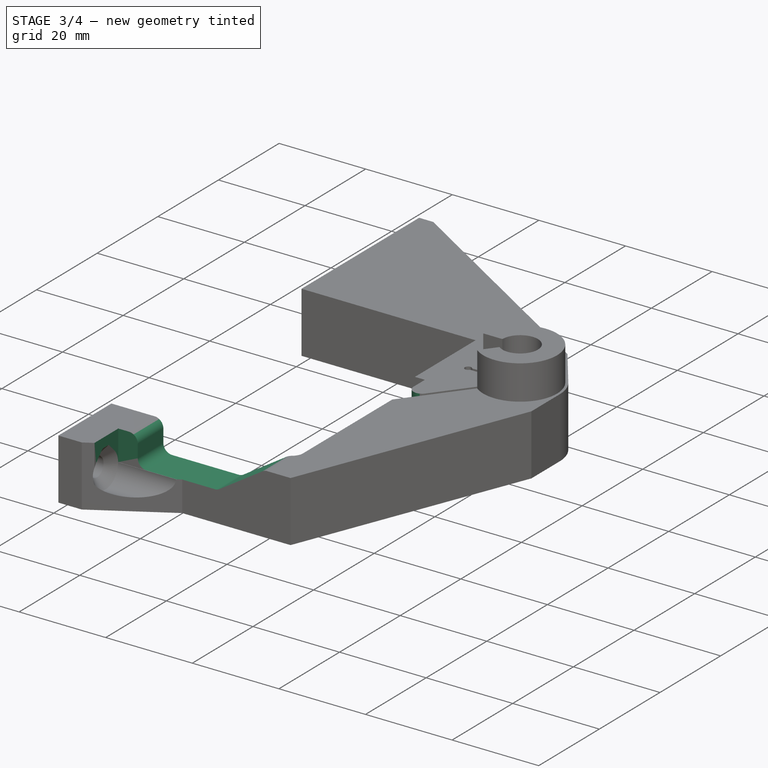
[diagram: stage 3 of 4 — iso view after this stage's code; geometry added in this stage tinted green]
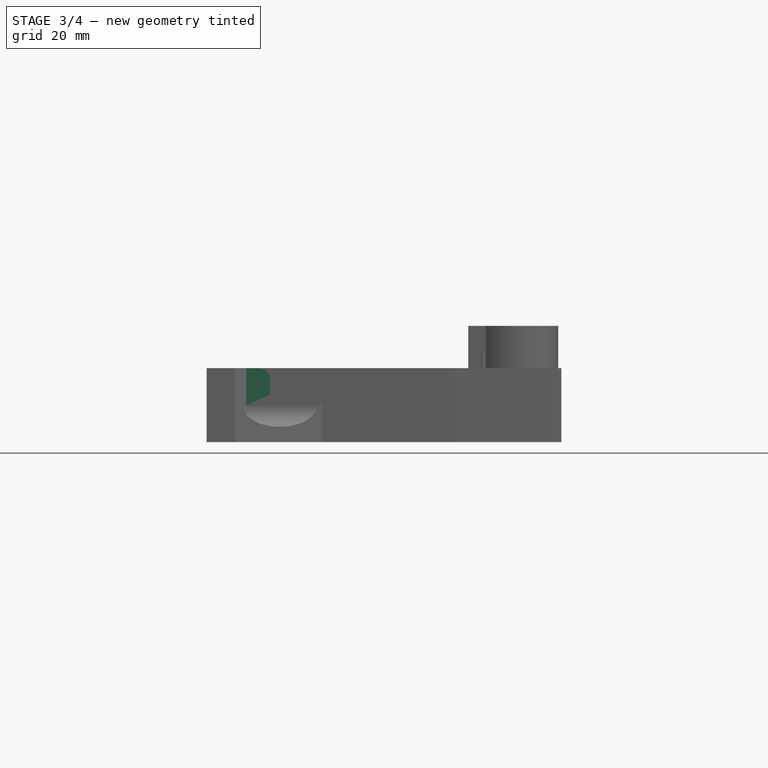
[diagram: stage 3 of 4 — front view after this stage's code; geometry added in this stage tinted green]
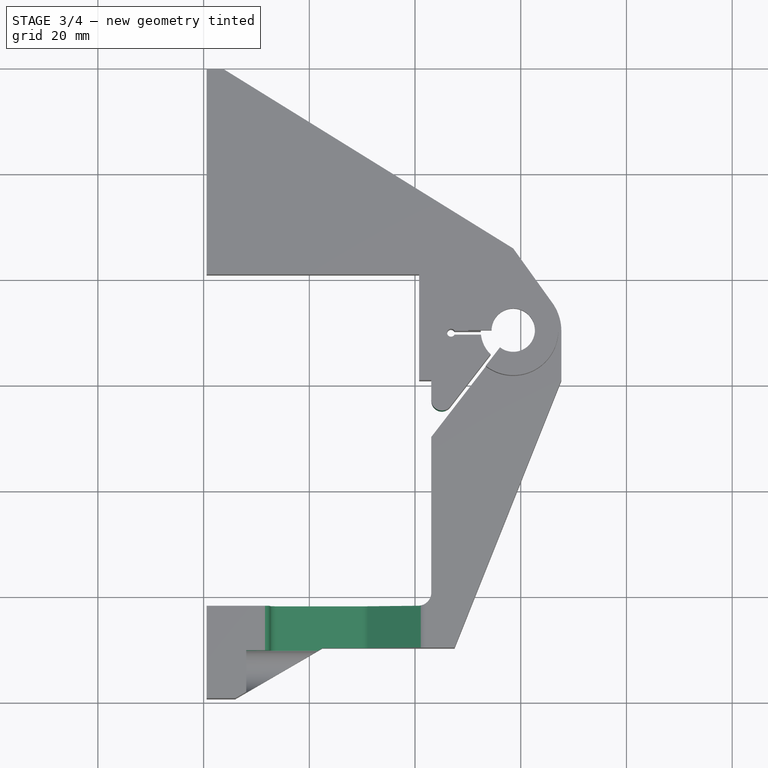
[diagram: stage 3 of 4 — top view after this stage's code; geometry added in this stage tinted green]
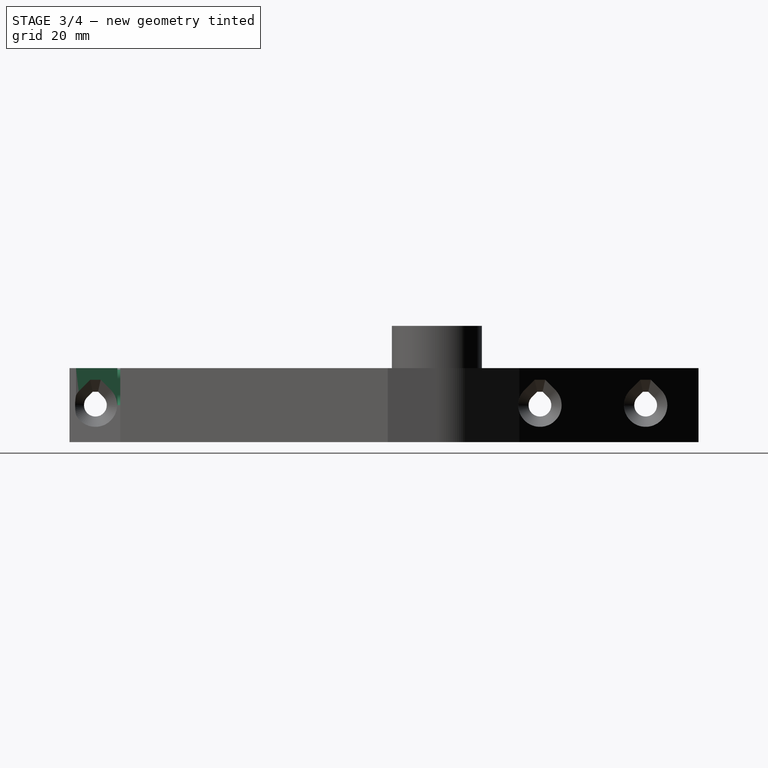
[diagram: stage 3 of 4 — right view after this stage's code; geometry added in this stage tinted green]
FEATURE [Sketcher::SketchObject] Sketch015
  MapMode = 5
  Placement = pos=(0,0,0) rot=(1,0,0;1.5708rad)
  Support = -> [XZ_Plane]
  sketch-geometry (4):
    g0: LineSegment StartX=12.58 StartY=14.14 StartZ=0 EndX=12.58 EndY=7.14 EndZ=0
    g1: LineSegment StartX=12.58 StartY=7.14 StartZ=0 EndX=30.58 EndY=7.14 EndZ=0
    g2: LineSegment StartX=30.58 StartY=7.14 StartZ=0 EndX=41.5 EndY=14.14 EndZ=0
    g3: LineSegment StartX=41.5 StartY=14.14 StartZ=0 EndX=12.58 EndY=14.14 EndZ=0
  constraints (12):
    c: Coincident(g0,g1)
    c: Coincident(g1,g2)
    c: Coincident(g2,g3)
    c: Coincident(g3,g0)
    c: Vertical(g0)
    c: Horizontal(g1)
    c: Horizontal(g3)
    c: DistanceY(g-1,g0) = 7.14
    c: Distance(g0) = 7
    c: DistanceX(g-2,g0) = 12.58
    c: DistanceX(g-2,g1) = 30.58
    c: DistanceX(g-2,g2) = 41.5
FEATURE [PartDesign::Pocket] Pocket002  label="StepperSocketClearance"
  BaseFeature = -> SubtractiveLoft002
  Length = 20
  Length2 = 100
  Profile = -> Sketch015
  Type = 0
FEATURE [Sketcher::SketchObject] Sketch016
  MapMode = 5
  Placement = pos=(0,0,0) rot=(1,0,0;1.5708rad)
  Support = -> [XZ_Plane]
  sketch-geometry (4):
    g0: LineSegment StartX=8.08 StartY=14.14 StartZ=0 EndX=48.08 EndY=14.14 EndZ=0
    g1: LineSegment StartX=48.08 StartY=14.14 StartZ=0 EndX=48.08 EndY=7.14 EndZ=0
    g2: LineSegment StartX=48.08 StartY=7.14 StartZ=0 EndX=8.08 EndY=7.14 EndZ=0
    g3: LineSegment StartX=8.08 StartY=7.14 StartZ=0 EndX=8.08 EndY=14.14 EndZ=0
  constraints (12):
    c: Coincident(g0,g1)
    c: Coincident(g1,g2)
    c: Coincident(g2,g3)
    c: Coincident(g3,g0)
    c: Horizontal(g0)
    c: Horizontal(g2)
    c: Vertical(g1)
    c: Vertical(g3)
    c: DistanceY(g-1,g2) = 7.14
    c: Distance(g3) = 7
    c: Distance(g0) = 40
    c: DistanceX(g-2,g0) = 8.08
FEATURE [PartDesign::Pocket] Pocket003
  BaseFeature = -> Pocket002
  Length = 9.75
  Length2 = 100
  Profile = -> Sketch016
  Type = 0
FEATURE [PartDesign::Fillet] Fillet
  Base = -> Pocket003 [Edge45,Edge41,Edge49,Edge51,Edge78]
  BaseFeature = -> Pocket003
  Radius = 2
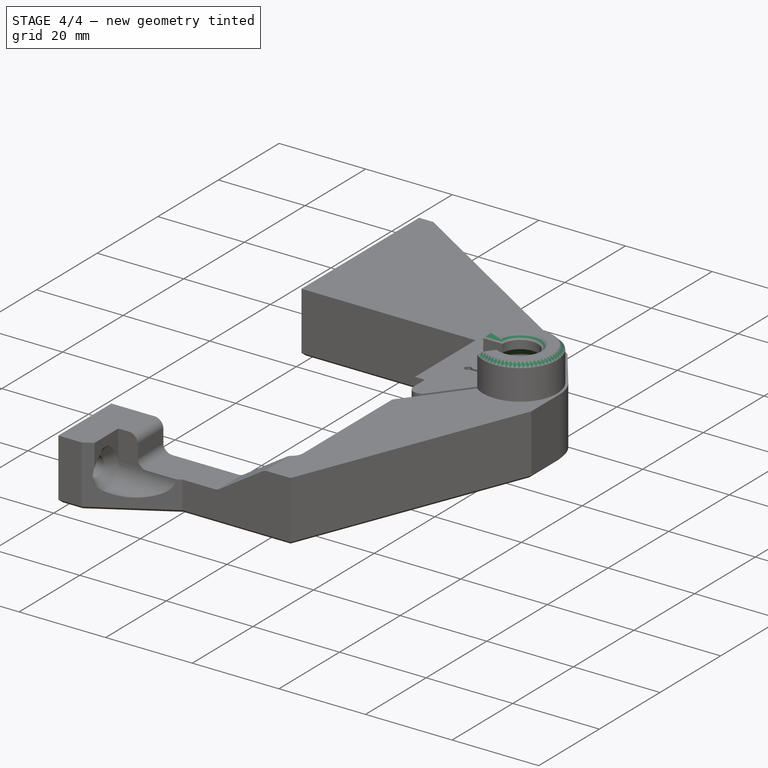
[diagram: stage 4 of 4 — iso view after this stage's code; geometry added in this stage tinted green]
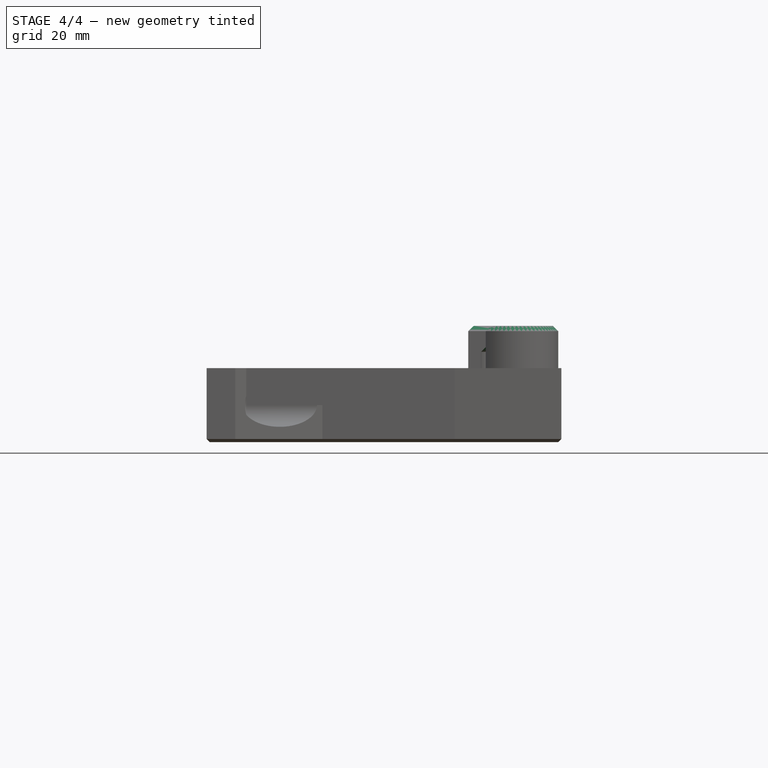
[diagram: stage 4 of 4 — front view after this stage's code; geometry added in this stage tinted green]
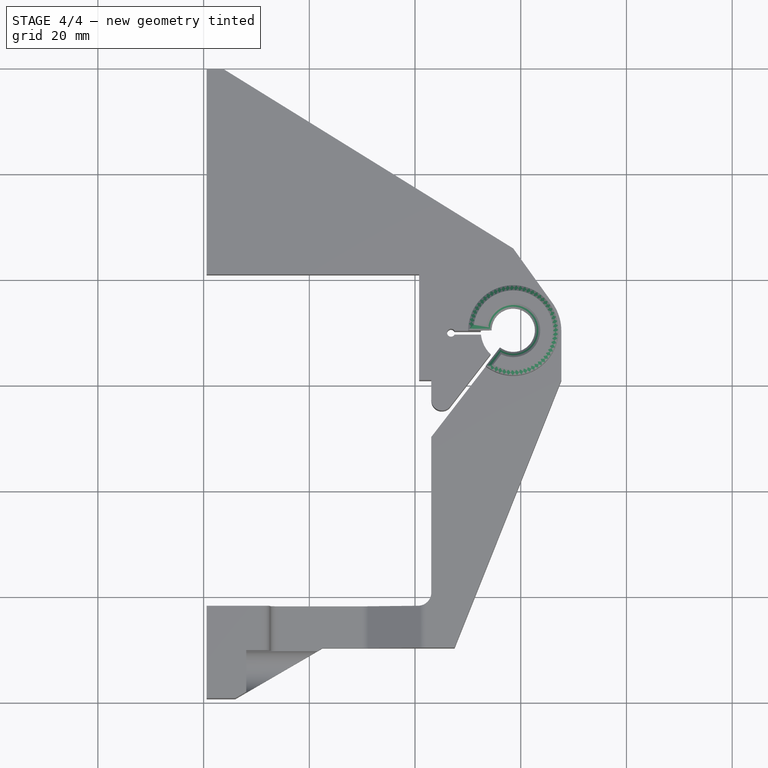
[diagram: stage 4 of 4 — top view after this stage's code; geometry added in this stage tinted green]
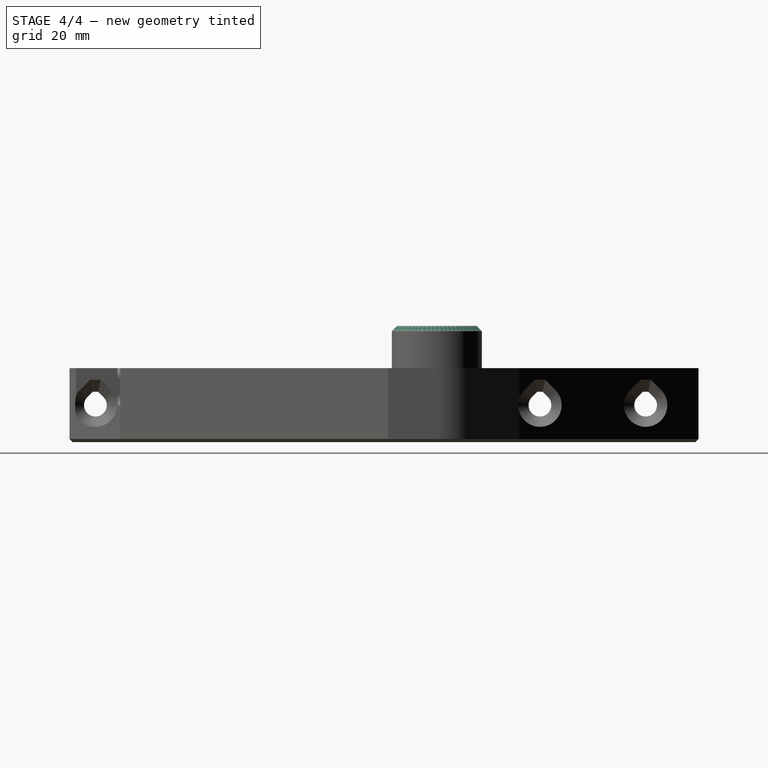
[diagram: stage 4 of 4 — right view after this stage's code; geometry added in this stage tinted green]
FEATURE [PartDesign::Chamfer] Chamfer
  Base = -> Fillet [Edge172]
  BaseFeature = -> Fillet
  Size = 2
FEATURE [PartDesign::Chamfer] Chamfer001
  Base = -> Chamfer [Edge3,Edge15,Edge16,Edge12]
  BaseFeature = -> Chamfer
  Size = 1
FEATURE [PartDesign::Chamfer] Chamfer002
  Base = -> Chamfer001 [Edge49,Edge9,Edge46,Edge54,Edge50,Edge51,Edge53,Edge52,Edge69,Edge70,Edge71,Edge72,Edge68,Edge67,Edge66,Edge65,Edge64,Edge63,Edge62,Edge61,Edge60,Edge59,Edge58,Edge57,Edge56,Edge55,Edge47]
  BaseFeature = -> Chamfer001
  Size = 0.6
FEATURE [PartDesign::Body] Body
  Group = -> [Sketch,Pad,Sketch001,Pocket,Sketch002,Pocket001,Sketch003,Sketch004,Sketch005,Sketch006,SubtractiveLoft,Sketch007,Sketch008,Sketch009,Sketch010,SubtractiveLoft001,Sketch011,Sketch012,Sketch013,Sketch014,SubtractiveLoft002,Sketch015,Pocket002,Sketch016,Pocket003,Fillet,Chamfer,Chamfer001,Chamfer002]
  Origin = -> Origin
  Tip = -> Chamfer002
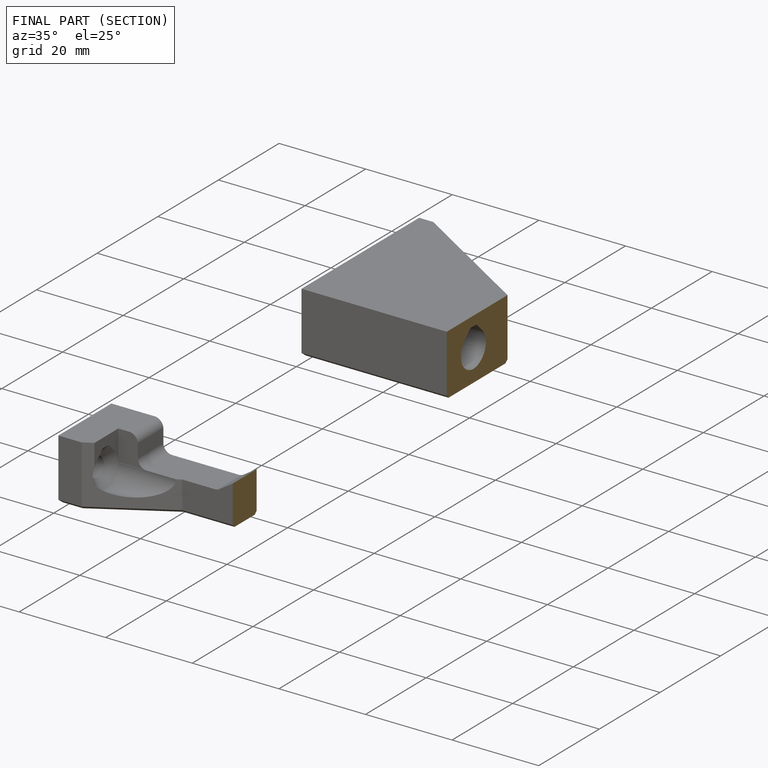
[diagram: finished part — half-section view (interior)]
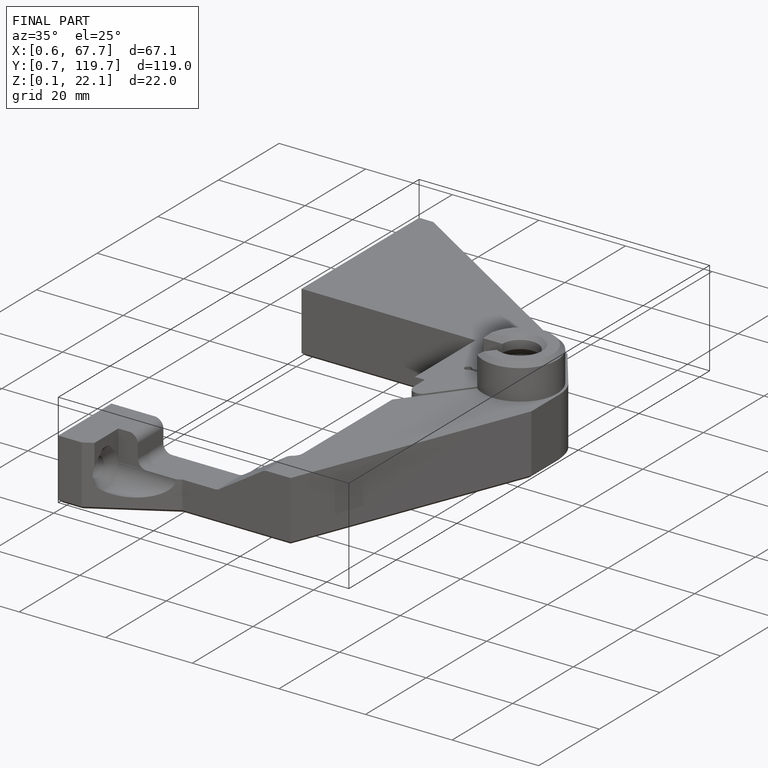
[diagram: finished part — iso view with bounding-box wireframe]
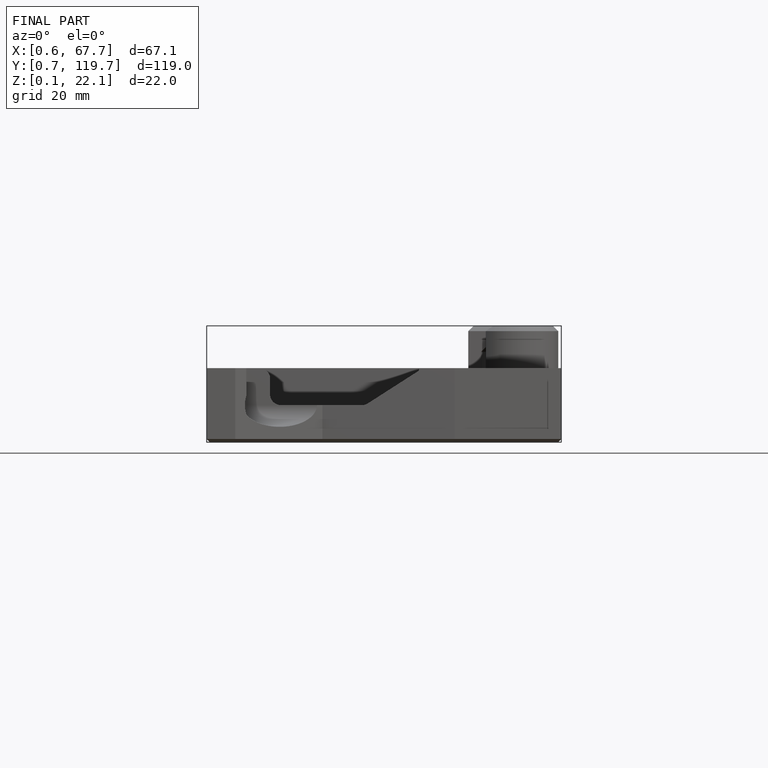
[diagram: finished part — front view with bounding-box wireframe]
